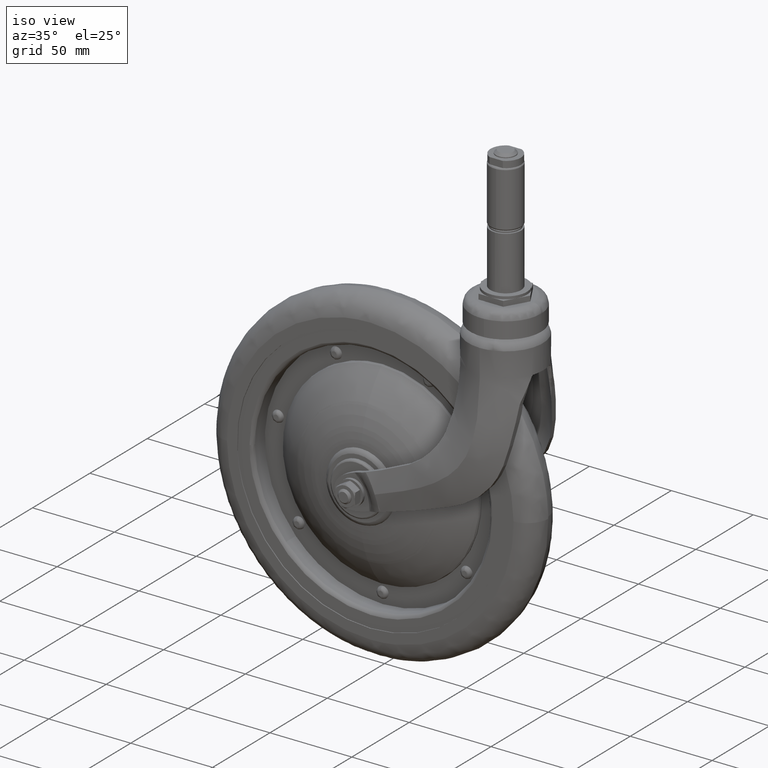
[diagram: clean part render]
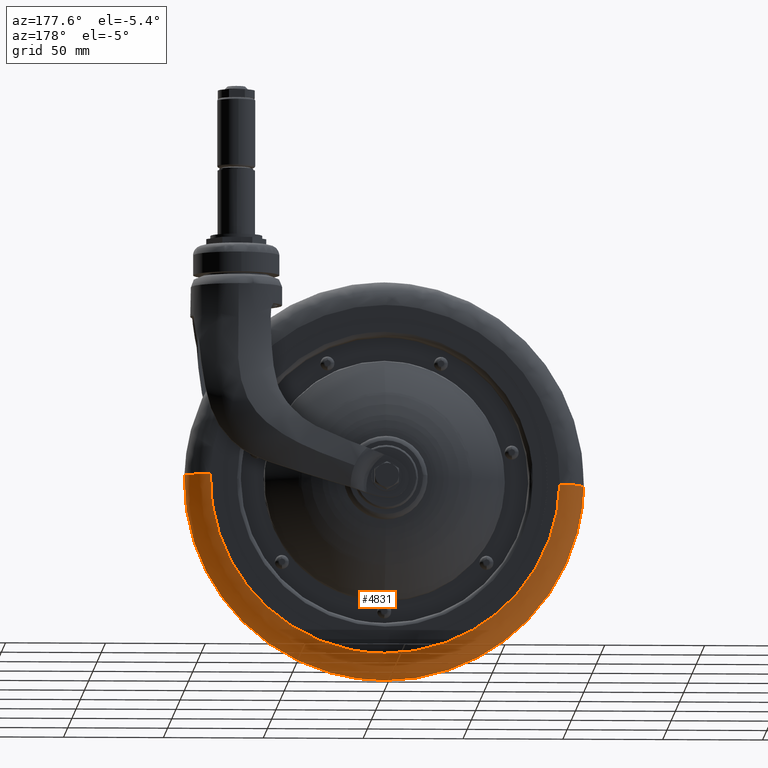
[diagram: tour spotlight — one face highlighted and labeled with its STEP entity id]
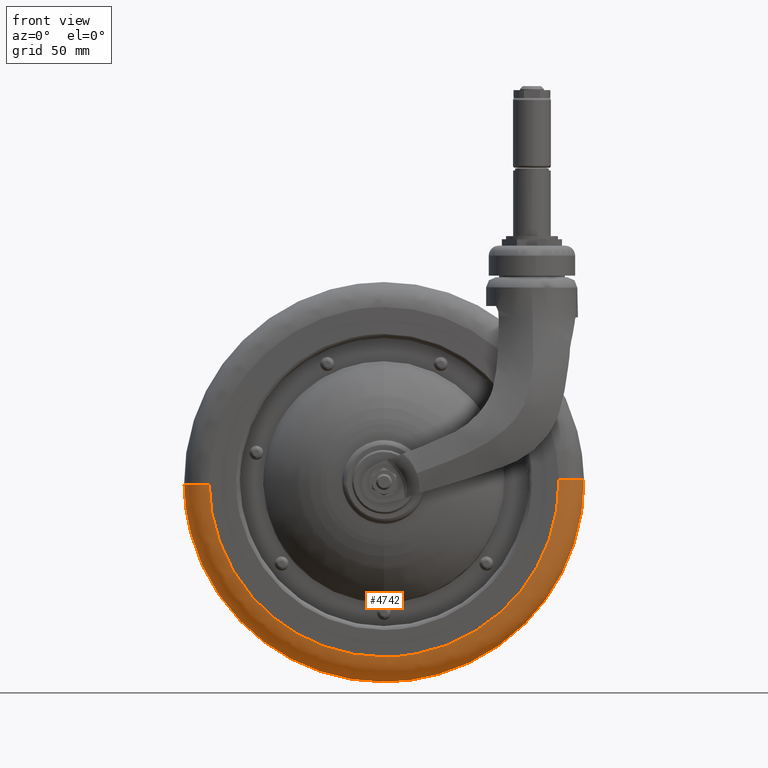
[diagram: tour spotlight — one face highlighted and labeled with its STEP entity id]
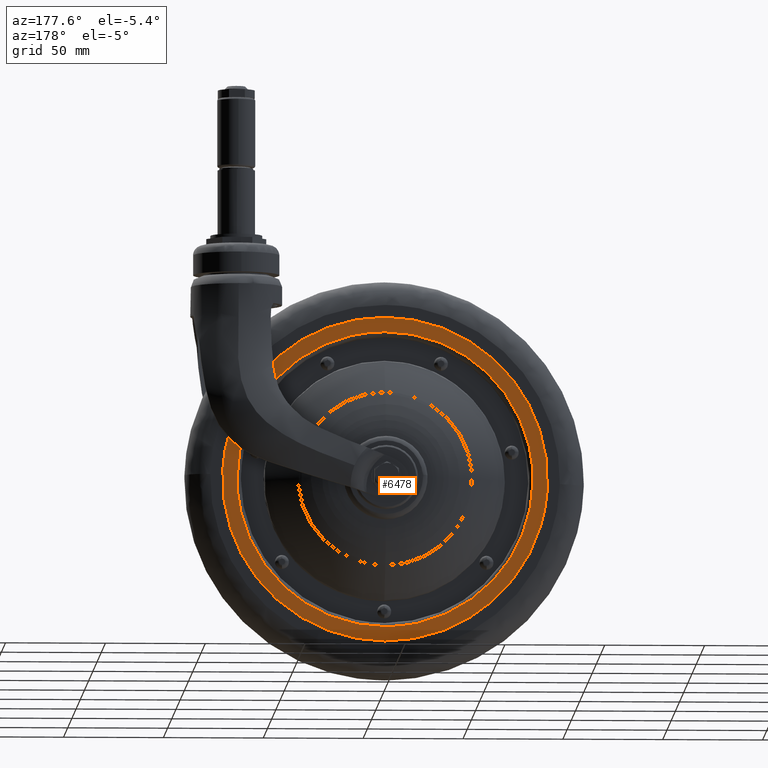
[diagram: tour spotlight — one face highlighted and labeled with its STEP entity id]
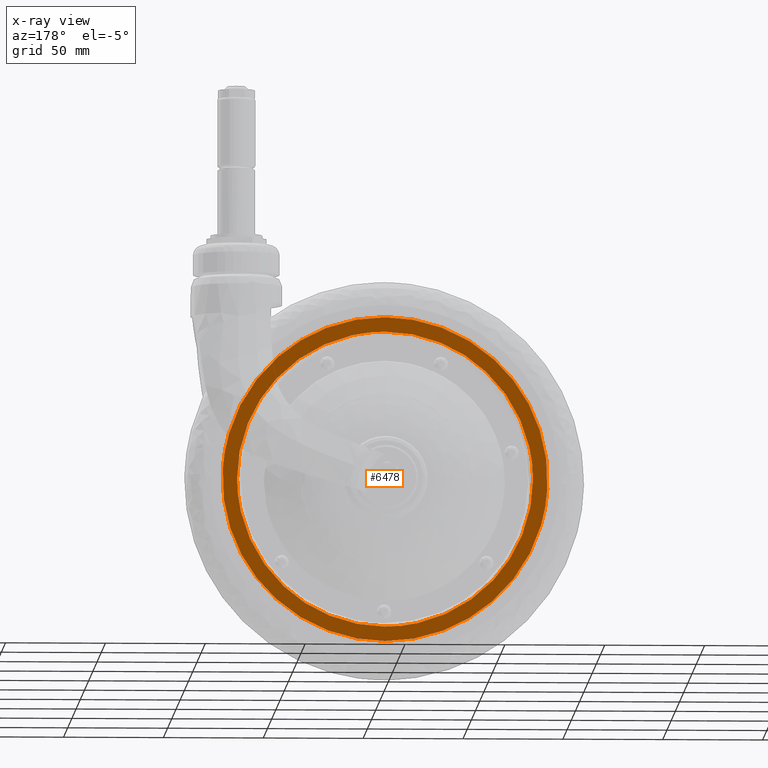
[diagram: x-ray of the same camera — body ghosted, this tour face saturated]
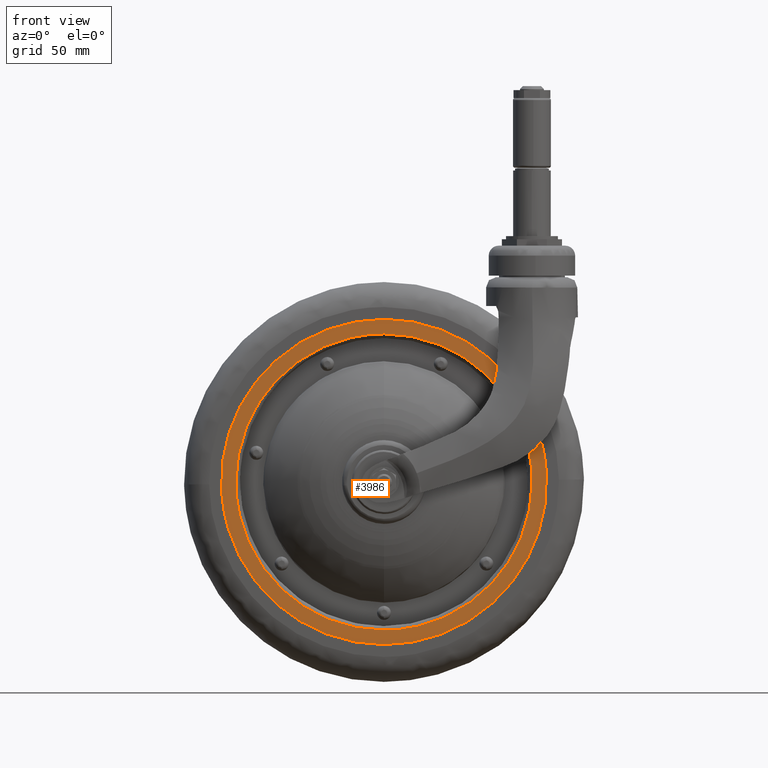
[diagram: tour spotlight — one face highlighted and labeled with its STEP entity id]
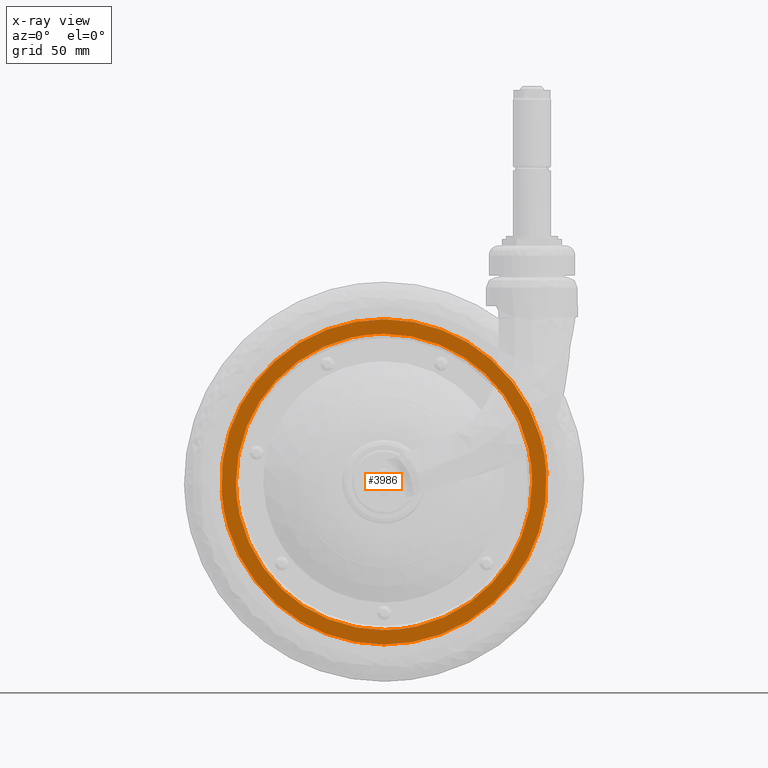
[diagram: x-ray of the same camera — body ghosted, this tour face saturated]
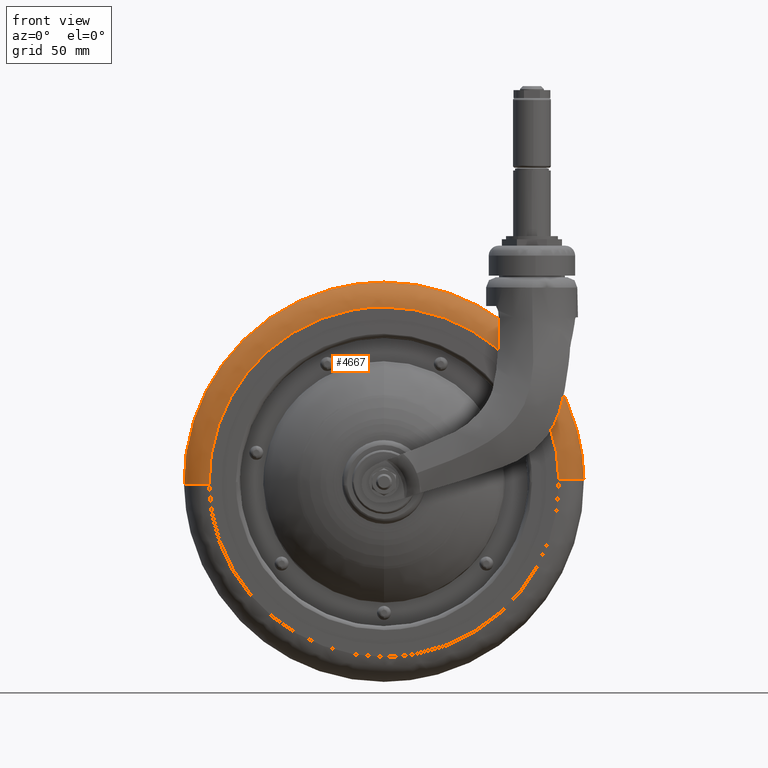
[diagram: tour spotlight — one face highlighted and labeled with its STEP entity id]
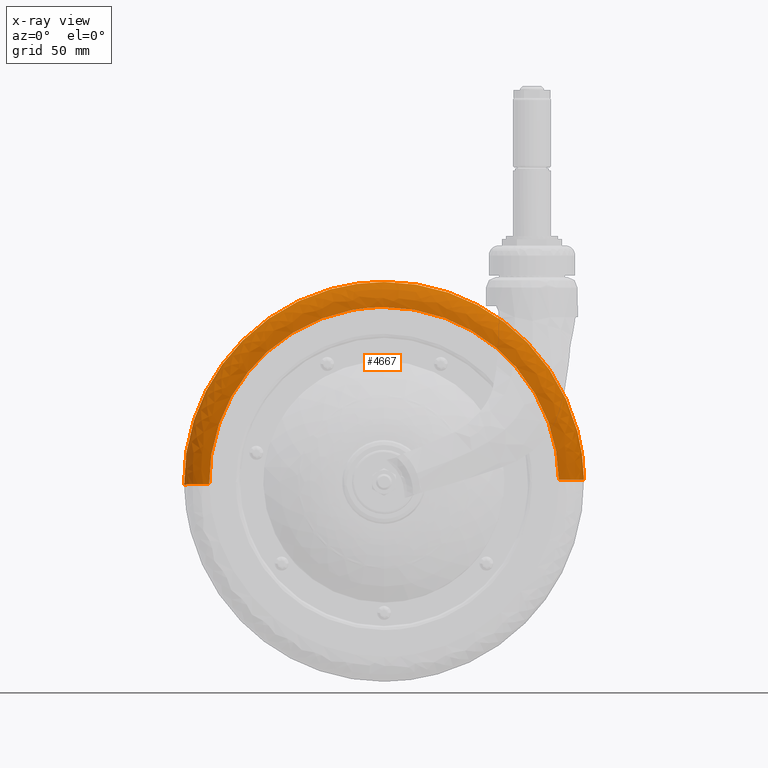
[diagram: x-ray of the same camera — body ghosted, this tour face saturated]
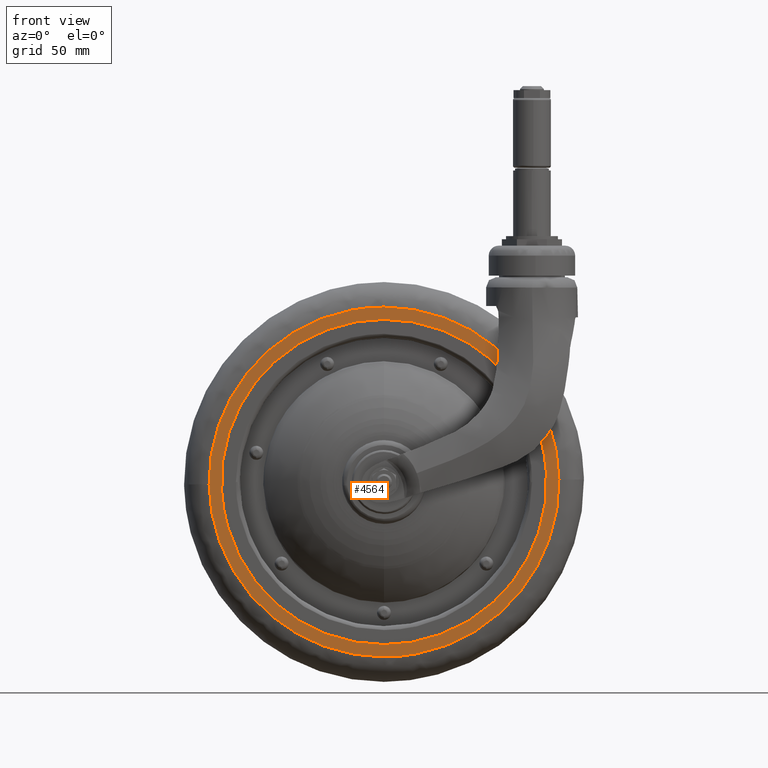
[diagram: tour spotlight — one face highlighted and labeled with its STEP entity id]
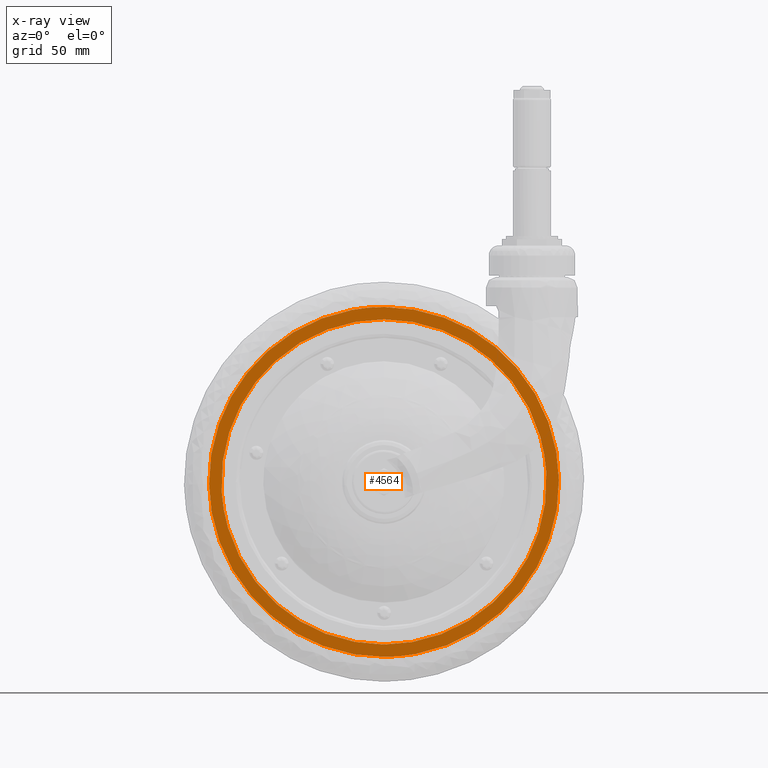
[diagram: x-ray of the same camera — body ghosted, this tour face saturated]
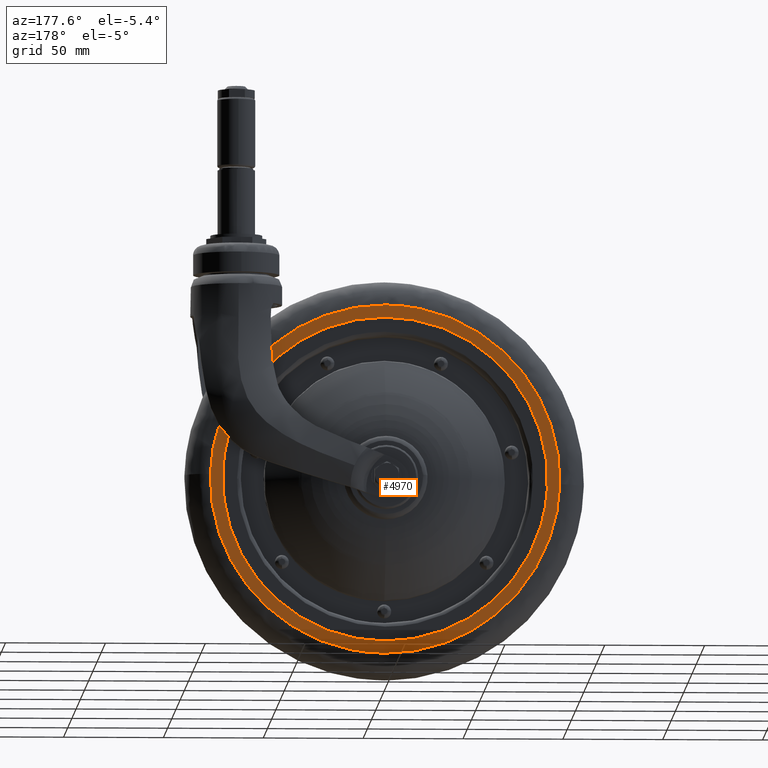
[diagram: tour spotlight — one face highlighted and labeled with its STEP entity id]
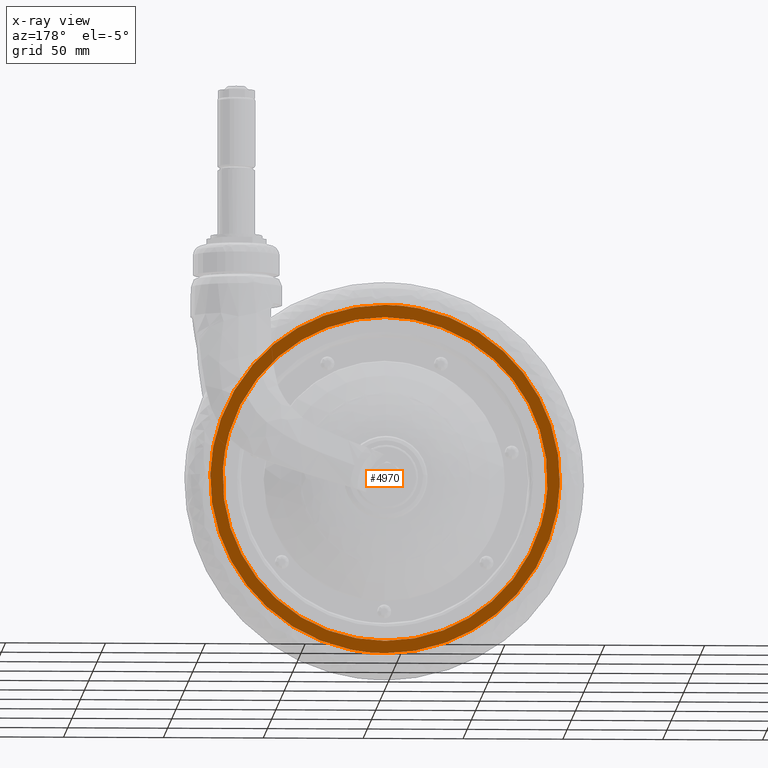
[diagram: x-ray of the same camera — body ghosted, this tour face saturated]
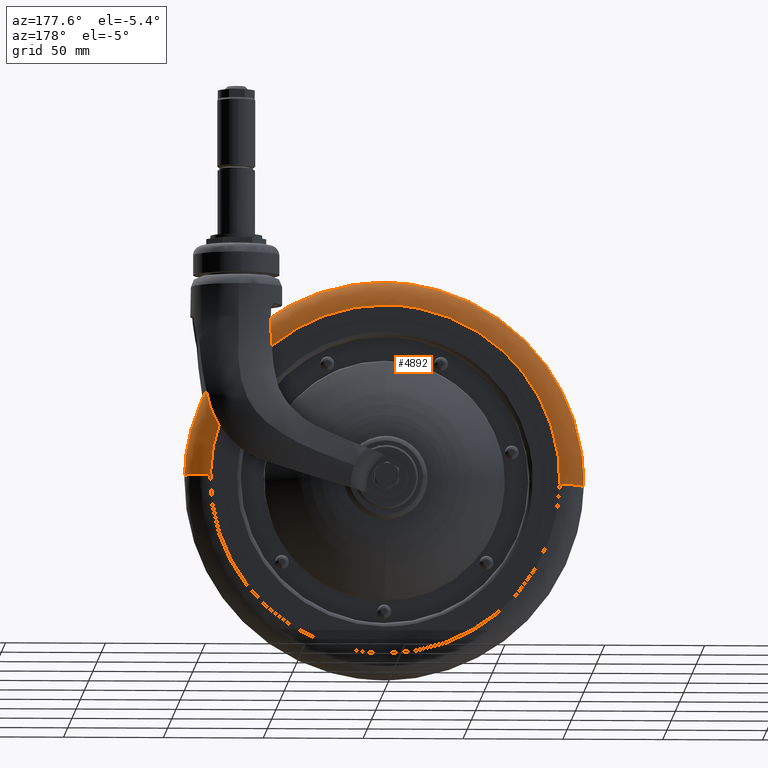
[diagram: tour spotlight — one face highlighted and labeled with its STEP entity id]
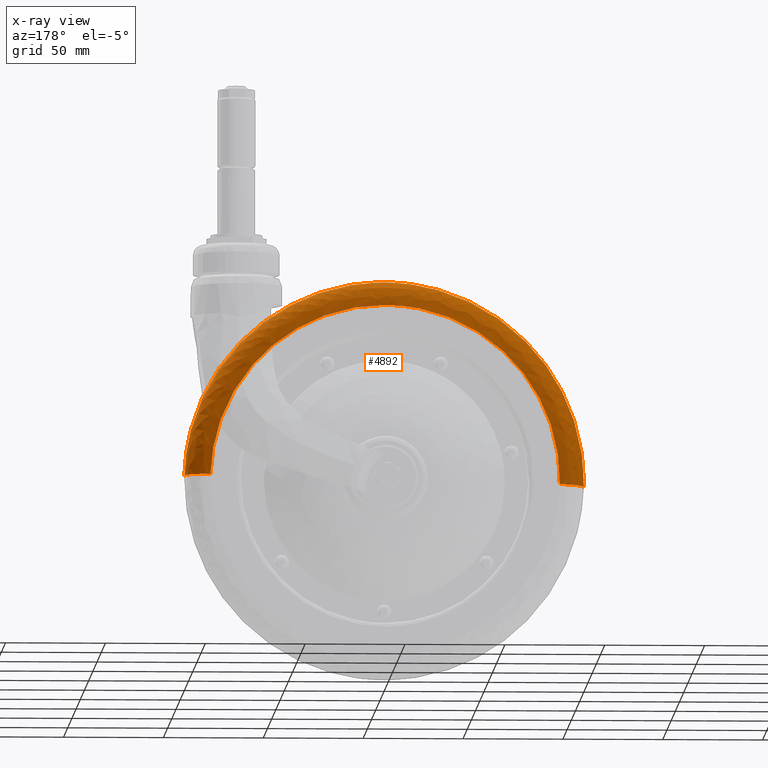
[diagram: x-ray of the same camera — body ghosted, this tour face saturated]
A machine part: a face-by-face anatomy tour. The part has 364 B-rep faces; the first image is the clean iso view, then the 8 largest visible faces are spotlighted one at a time (largest first), each with its STEP entity span.

Face 1 — auxiliary view, entity #4831. In plain terms, the highlighted face is a freeform B-spline surface patch.
Definition (entity closure, byte-faithful):
#4590=CARTESIAN_POINT('',(99.992104420381438,-9.870293E-011,1.256603988346599));
#4591=VERTEX_POINT('',#4590);
#4605=CARTESIAN_POINT('',(99.968418928329598,1.717467E-009,2.513009544348509));
#4606=VERTEX_POINT('',#4605);
#4607=CARTESIAN_POINT('',(99.968418928329598,1.717467E-009,2.513009544348509));
#4608=CARTESIAN_POINT('',(99.984208840762960,8.093799E-010,1.884881177494595));
#4609=CARTESIAN_POINT('',(99.992104420381423,-9.870293E-011,1.256603988346599));
#4617=(BOUNDED_CURVE()B_SPLINE_CURVE(2,(#4607,#4608,#4609),.UNSPECIFIED.,.F.,.U.)B_SPLINE_CURVE_WITH_KNOTS((3,3),(0.245579891769782,0.247784295921708),.UNSPECIFIED.)CURVE()GEOMETRIC_REPRESENTATION_ITEM()RATIONAL_B_SPLINE_CURVE((0.989826157681518,0.992317454108764,0.994854295643967))REPRESENTATION_ITEM(''));
#4618=EDGE_CURVE('',#4606,#4591,#4617,.T.);
#4693=CARTESIAN_POINT('',(-99.968418928329612,1.717467E-009,-2.513009544348494));
#4694=VERTEX_POINT('',#4693);
#4708=CARTESIAN_POINT('',(0.0,-3.061516E-015,-99.999999999999986));
#4709=VERTEX_POINT('',#4708);
#4710=CARTESIAN_POINT('',(0.0,-3.061516E-015,-99.999999999999986));
#4711=CARTESIAN_POINT('',(-97.517787618050548,8.590323E-010,-99.999999999999986));
#4712=CARTESIAN_POINT('',(-99.968418928329612,1.717467E-009,-2.513009544348494));
#4720=(BOUNDED_CURVE()B_SPLINE_CURVE(2,(#4710,#4711,#4712),.UNSPECIFIED.,.F.,.U.)B_SPLINE_CURVE_WITH_KNOTS((3,3),(0.500000000000000,0.745579891769782),.UNSPECIFIED.)CURVE()GEOMETRIC_REPRESENTATION_ITEM()RATIONAL_B_SPLINE_CURVE((1.0,0.712285260094757,0.989826157681518))REPRESENTATION_ITEM(''));
#4721=EDGE_CURVE('',#4709,#4694,#4720,.T.);
#4723=CARTESIAN_POINT('',(99.992104420381423,-9.870293E-011,1.256603988346599));
#4724=CARTESIAN_POINT('',(99.999999999999972,-9.839672E-011,0.628326799194651));
#4725=CARTESIAN_POINT('',(99.999999999999972,-9.808664E-011,7.723035E-015));
#4726=CARTESIAN_POINT('',(99.999999999999986,-4.873671E-011,-99.999999999999986));
#4727=CARTESIAN_POINT('',(0.0,-3.061516E-015,-99.999999999999986));
#4735=(BOUNDED_CURVE()B_SPLINE_CURVE(2,(#4723,#4724,#4725,#4726,#4727),.UNSPECIFIED.,.F.,.U.)B_SPLINE_CURVE_WITH_KNOTS((3,2,3),(0.247784295921708,0.250000000000000,0.500000000000000),.UNSPECIFIED.)CURVE()GEOMETRIC_REPRESENTATION_ITEM()RATIONAL_B_SPLINE_CURVE((0.994854295643967,0.997404141202284,1.0,0.707106781186547,1.0))REPRESENTATION_ITEM(''));
#4736=EDGE_CURVE('',#4591,#4709,#4735,.T.);
#4743=CARTESIAN_POINT('',(99.938007380850351,-0.871552306805747,2.512245057809973));
#4744=CARTESIAN_POINT('',(102.450252438660340,-0.871552306805747,-97.425762323040345));
#4745=CARTESIAN_POINT('',(2.512245057810001,-0.871552306805747,-99.938007380850351));
#4746=CARTESIAN_POINT('',(-97.425762323040345,-0.871552306805747,-102.450252438660340));
#4747=CARTESIAN_POINT('',(-99.938007380850351,-0.871552306805747,-2.512245057810008));
#4748=CARTESIAN_POINT('',(100.939852512873950,13.466696018658997,2.537429475106045));
#4749=CARTESIAN_POINT('',(103.477281987980020,13.466696018658995,-98.402423037767889));
#4750=CARTESIAN_POINT('',(2.537429475106073,13.466696018658997,-100.939852512873950));
#4751=CARTESIAN_POINT('',(-98.402423037767875,13.466696018658995,-103.477281987980020));
#4752=CARTESIAN_POINT('',(-100.939852512873950,13.466696018658997,-2.537429475106080));
#4753=CARTESIAN_POINT('',(86.605758157060095,12.469904381874365,2.177098519473290));
#4754=CARTESIAN_POINT('',(88.782856676533385,12.469904381874368,-84.428659637586748));
#4755=CARTESIAN_POINT('',(2.177098519473314,12.469904381874365,-86.605758157060095));
#4756=CARTESIAN_POINT('',(-84.428659637586748,12.469904381874368,-88.782856676533385));
#4757=CARTESIAN_POINT('',(-86.605758157060095,12.469904381874365,-2.177098519473319));
#4765=(BOUNDED_SURFACE()B_SPLINE_SURFACE(2,2,((#4743,#4748,#4753),(#4744,#4749,#4754),(#4745,#4750,#4755),(#4746,#4751,#4756),(#4747,#4752,#4757)),.UNSPECIFIED.,.F.,.F.,.U.)B_SPLINE_SURFACE_WITH_KNOTS((3,2,3),(3,3),(0.0,165.635021529622610,331.270043059245320),(0.0,22.779629064910981),.UNSPECIFIED.)GEOMETRIC_REPRESENTATION_ITEM()RATIONAL_B_SPLINE_SURFACE(((0.910892941386805,0.599412934105556,0.915966621324616),(0.644098575789570,0.423848950436964,0.647686209279166),(0.910892941386805,0.599412934105556,0.915966621324616),(0.644098575789570,0.423848950436964,0.647686209279166),(0.910892941386805,0.599412934105556,0.915966621324616)))REPRESENTATION_ITEM('')SURFACE());
#4766=ORIENTED_EDGE('',*,*,#4618,.T.);
#4767=ORIENTED_EDGE('',*,*,#4736,.T.);
#4768=ORIENTED_EDGE('',*,*,#4721,.T.);
#4769=CARTESIAN_POINT('',(-87.472366570442929,12.500000000000000,-2.198883352290745));
#4770=VERTEX_POINT('',#4769);
#4771=CARTESIAN_POINT('',(-99.968418928329612,1.717467E-009,-2.513009544348494));
#4772=CARTESIAN_POINT('',(-99.968418926602894,12.499999991823262,-2.513009544694577));
#4773=CARTESIAN_POINT('',(-87.472366570442929,12.500000000000002,-2.198883352290746));
#4781=(BOUNDED_CURVE()B_SPLINE_CURVE(2,(#4771,#4772,#4773),.UNSPECIFIED.,.F.,.U.)B_SPLINE_CURVE_WITH_KNOTS((3,3),(-1.723441281843306,-0.263586879604840),.UNSPECIFIED.)CURVE()GEOMETRIC_REPRESENTATION_ITEM()RATIONAL_B_SPLINE_CURVE((0.883897567088807,0.626638727382220,0.888510408819663))REPRESENTATION_ITEM(''));
#4782=EDGE_CURVE('',#4694,#4770,#4781,.T.);
#4783=ORIENTED_EDGE('',*,*,#4782,.T.);
#4784=CARTESIAN_POINT('',(0.0,12.500000000000000,-87.500000000000000));
#4785=VERTEX_POINT('',#4784);
#4786=CARTESIAN_POINT('',(0.0,12.500000000000000,-87.500000000000000));
#4787=CARTESIAN_POINT('',(-85.328064169119855,12.500000000000000,-87.500000000102759));
#4788=CARTESIAN_POINT('',(-87.472366570442929,12.499999999999998,-2.198883352290745));
#4796=(BOUNDED_CURVE()B_SPLINE_CURVE(2,(#4786,#4787,#4788),.UNSPECIFIED.,.F.,.U.)B_SPLINE_CURVE_WITH_KNOTS((3,3),(0.500000000000000,0.745579891768221),.UNSPECIFIED.)CURVE()GEOMETRIC_REPRESENTATION_ITEM()RATIONAL_B_SPLINE_CURVE((1.0,0.712285260096586,0.989826157677990))REPRESENTATION_ITEM(''));
#4797=EDGE_CURVE('',#4785,#4770,#4796,.T.);
#4798=ORIENTED_EDGE('',*,*,#4797,.F.);
#4799=CARTESIAN_POINT('',(87.472366570442944,12.500000000000000,2.198883352290750));
#4800=VERTEX_POINT('',#4799);
#4801=CARTESIAN_POINT('',(87.472366570442944,12.500000000000000,2.198883352290750));
#4802=CARTESIAN_POINT('',(87.500000008124061,12.500000000000004,1.099615311396745));
#4803=CARTESIAN_POINT('',(87.500000008072689,12.500000000000000,2.029338E-010));
#4804=CARTESIAN_POINT('',(87.500000003985619,12.500000000000000,-87.499999999899799));
#4805=CARTESIAN_POINT('',(0.0,12.500000000000000,-87.500000000000000));
#4813=(BOUNDED_CURVE()B_SPLINE_CURVE(2,(#4801,#4802,#4803,#4804,#4805),.UNSPECIFIED.,.F.,.U.)B_SPLINE_CURVE_WITH_KNOTS((3,2,3),(0.245579891768221,0.250000000000000,0.500000000000000),.UNSPECIFIED.)CURVE()GEOMETRIC_REPRESENTATION_ITEM()RATIONAL_B_SPLINE_CURVE((0.989826157677990,0.994821521089961,1.0,0.707106781186548,1.0))REPRESENTATION_ITEM(''));
#4814=EDGE_CURVE('',#4800,#4785,#4813,.T.);
#4815=ORIENTED_EDGE('',*,*,#4814,.F.);
#4816=CARTESIAN_POINT('',(99.968418928329598,1.717467E-009,2.513009544348510));
#4817=CARTESIAN_POINT('',(99.968418926602894,12.499999991823264,2.513009544694591));
#4818=CARTESIAN_POINT('',(87.472366570442944,12.500000000000002,2.198883352290750));
#4826=(BOUNDED_CURVE()B_SPLINE_CURVE(2,(#4816,#4817,#4818),.UNSPECIFIED.,.F.,.U.)B_SPLINE_CURVE_WITH_KNOTS((3,3),(-1.723441281843306,-0.263586879604840),.UNSPECIFIED.)CURVE()GEOMETRIC_REPRESENTATION_ITEM()RATIONAL_B_SPLINE_CURVE((0.883897567088807,0.626638727382220,0.888510408819663))REPRESENTATION_ITEM(''));
#4827=EDGE_CURVE('',#4606,#4800,#4826,.T.);
#4828=ORIENTED_EDGE('',*,*,#4827,.F.);
#4829=EDGE_LOOP('',(#4766,#4767,#4768,#4783,#4798,#4815,#4828));
#4830=FACE_OUTER_BOUND('',#4829,.T.);
#4831=ADVANCED_FACE('',(#4830),#4765,.T.);

Face 2 — front view, entity #4742. In plain terms, the highlighted face is a freeform B-spline surface patch.
Definition (entity closure, byte-faithful):
#4492=CARTESIAN_POINT('',(-87.493091373194090,-12.500000000000000,-1.099528490267587));
#4493=VERTEX_POINT('',#4492);
#4511=CARTESIAN_POINT('',(0.0,-12.500000000000000,-87.500000000000000));
#4512=VERTEX_POINT('',#4511);
#4513=CARTESIAN_POINT('',(0.0,-12.500000000000000,-87.500000000000000));
#4514=CARTESIAN_POINT('',(-86.407293869170857,-12.500000000000000,-87.500000000033722));
#4515=CARTESIAN_POINT('',(-87.493091373194090,-12.500000000000002,-1.099528490267587));
#4523=(BOUNDED_CURVE()B_SPLINE_CURVE(2,(#4513,#4514,#4515),.UNSPECIFIED.,.F.,.U.)B_SPLINE_CURVE_WITH_KNOTS((3,3),(0.500000000000000,0.747784295920910),.UNSPECIFIED.)CURVE()GEOMETRIC_REPRESENTATION_ITEM()RATIONAL_B_SPLINE_CURVE((1.0,0.709702639985198,0.994854295642130))REPRESENTATION_ITEM(''));
#4524=EDGE_CURVE('',#4512,#4493,#4523,.T.);
#4526=CARTESIAN_POINT('',(87.493091373194090,-12.500000000000000,1.099528490267598));
#4527=VERTEX_POINT('',#4526);
#4528=CARTESIAN_POINT('',(87.493091373194090,-12.500000000000002,1.099528490267598));
#4529=CARTESIAN_POINT('',(87.500000005348653,-12.500000000000002,0.549785949561004));
#4530=CARTESIAN_POINT('',(87.500000005331799,-12.500000000000000,6.700351E-011));
#4531=CARTESIAN_POINT('',(87.500000002649145,-12.500000000000000,-87.499999999966704));
#4532=CARTESIAN_POINT('',(0.0,-12.500000000000000,-87.500000000000000));
#4540=(BOUNDED_CURVE()B_SPLINE_CURVE(2,(#4528,#4529,#4530,#4531,#4532),.UNSPECIFIED.,.F.,.U.)B_SPLINE_CURVE_WITH_KNOTS((3,2,3),(0.247784295920911,0.250000000000000,0.500000000000000),.UNSPECIFIED.)CURVE()GEOMETRIC_REPRESENTATION_ITEM()RATIONAL_B_SPLINE_CURVE((0.994854295642130,0.997404141201349,1.0,0.707106781186548,1.0))REPRESENTATION_ITEM(''));
#4541=EDGE_CURVE('',#4527,#4512,#4540,.T.);
#4590=CARTESIAN_POINT('',(99.992104420381438,-9.870293E-011,1.256603988346599));
#4591=VERTEX_POINT('',#4590);
#4592=CARTESIAN_POINT('',(87.493091373194076,-12.500000000000004,1.099528490267598));
#4593=CARTESIAN_POINT('',(99.992104420280242,-12.499999994634253,1.256603988543091));
#4594=CARTESIAN_POINT('',(99.992104420381452,-9.870293E-011,1.256603988346599));
#4602=(BOUNDED_CURVE()B_SPLINE_CURVE(2,(#4592,#4593,#4594),.UNSPECIFIED.,.F.,.U.)B_SPLINE_CURVE_WITH_KNOTS((3,3),(-1.734750791212361,-0.265249208349804),.UNSPECIFIED.)CURVE()GEOMETRIC_REPRESENTATION_ITEM()RATIONAL_B_SPLINE_CURVE((0.889029723418368,0.628638946297795,0.889029723573534))REPRESENTATION_ITEM(''));
#4603=EDGE_CURVE('',#4527,#4591,#4602,.T.);
#4635=CARTESIAN_POINT('',(-99.992104420381452,-9.870293E-011,-1.256603988346607));
#4636=VERTEX_POINT('',#4635);
#4652=CARTESIAN_POINT('',(-87.493091373194105,-12.500000000000000,-1.099528490267587));
#4653=CARTESIAN_POINT('',(-99.992104420280256,-12.499999994634264,-1.256603988543095));
#4654=CARTESIAN_POINT('',(-99.992104420381452,-9.870293E-011,-1.256603988346607));
#4662=(BOUNDED_CURVE()B_SPLINE_CURVE(2,(#4652,#4653,#4654),.UNSPECIFIED.,.F.,.U.)B_SPLINE_CURVE_WITH_KNOTS((3,3),(-1.734750791212361,-0.265249208349804),.UNSPECIFIED.)CURVE()GEOMETRIC_REPRESENTATION_ITEM()RATIONAL_B_SPLINE_CURVE((0.889029723418368,0.628638946297794,0.889029723573534))REPRESENTATION_ITEM(''));
#4663=EDGE_CURVE('',#4493,#4636,#4662,.T.);
#4668=CARTESIAN_POINT('',(86.623946279589092,-12.469742078846373,1.088605915549441));
#4669=CARTESIAN_POINT('',(87.712552195138542,-12.469742078846366,-85.535340364039641));
#4670=CARTESIAN_POINT('',(1.088605915549446,-12.469742078846373,-86.623946279589092));
#4671=CARTESIAN_POINT('',(-85.535340364039641,-12.469742078846366,-87.712552195138542));
#4672=CARTESIAN_POINT('',(-86.623946279589092,-12.469742078846373,-1.088605915549451));
#4673=CARTESIAN_POINT('',(100.961242383563860,-13.469214113486954,1.268783176250486));
#4674=CARTESIAN_POINT('',(102.230025559814290,-13.469214113486954,-99.692459207313334));
#4675=CARTESIAN_POINT('',(1.268783176250492,-13.469214113486954,-100.961242383563860));
#4676=CARTESIAN_POINT('',(-99.692459207313334,-13.469214113486954,-102.230025559814320));
#4677=CARTESIAN_POINT('',(-100.961242383563860,-13.469214113486954,-1.268783176250498));
#4678=CARTESIAN_POINT('',(99.961848864081190,0.869214064691297,1.256223765787251));
#4679=CARTESIAN_POINT('',(101.218072629868490,0.869214064691297,-98.705625098293964));
#4680=CARTESIAN_POINT('',(1.256223765787257,0.869214064691297,-99.961848864081190));
#4681=CARTESIAN_POINT('',(-98.705625098293936,0.869214064691297,-101.218072629868490));
#4682=CARTESIAN_POINT('',(-99.961848864081190,0.869214064691297,-1.256223765787264));
#4690=(BOUNDED_SURFACE()B_SPLINE_SURFACE(2,2,((#4668,#4673,#4678),(#4669,#4674,#4679),(#4670,#4675,#4680),(#4671,#4676,#4681),(#4672,#4677,#4682)),.UNSPECIFIED.,.F.,.F.,.U.)B_SPLINE_SURFACE_WITH_KNOTS((3,2,3),(3,3),(0.0,165.635291943919610,331.270583887839110),(0.0,22.779673961239510),.UNSPECIFIED.)GEOMETRIC_REPRESENTATION_ITEM()RATIONAL_B_SPLINE_SURFACE(((0.916342095240933,0.601326568744382,0.916342106857795),(0.647951709431553,0.425202094466791,0.647951717645915),(0.916342095240933,0.601326568744382,0.916342106857795),(0.647951709431553,0.425202094466791,0.647951717645915),(0.916342095240933,0.601326568744382,0.916342106857795)))REPRESENTATION_ITEM('')SURFACE());
#4691=ORIENTED_EDGE('',*,*,#4524,.T.);
#4692=ORIENTED_EDGE('',*,*,#4663,.T.);
#4693=CARTESIAN_POINT('',(-99.968418928329612,1.717467E-009,-2.513009544348494));
#4694=VERTEX_POINT('',#4693);
#4695=CARTESIAN_POINT('',(-99.968418928329612,1.717467E-009,-2.513009544348494));
#4696=CARTESIAN_POINT('',(-99.984208840762960,8.093799E-010,-1.884881177494592));
#4697=CARTESIAN_POINT('',(-99.992104420381452,-9.870293E-011,-1.256603988346607));
#4705=(BOUNDED_CURVE()B_SPLINE_CURVE(2,(#4695,#4696,#4697),.UNSPECIFIED.,.F.,.U.)B_SPLINE_CURVE_WITH_KNOTS((3,3),(0.745579891769782,0.747784295921708),.UNSPECIFIED.)CURVE()GEOMETRIC_REPRESENTATION_ITEM()RATIONAL_B_SPLINE_CURVE((0.989826157681518,0.992317454108765,0.994854295643967))REPRESENTATION_ITEM(''));
#4706=EDGE_CURVE('',#4694,#4636,#4705,.T.);
#4707=ORIENTED_EDGE('',*,*,#4706,.F.);
#4708=CARTESIAN_POINT('',(0.0,-3.061516E-015,-99.999999999999986));
#4709=VERTEX_POINT('',#4708);
#4710=CARTESIAN_POINT('',(0.0,-3.061516E-015,-99.999999999999986));
#4711=CARTESIAN_POINT('',(-97.517787618050548,8.590323E-010,-99.999999999999986));
#4712=CARTESIAN_POINT('',(-99.968418928329612,1.717467E-009,-2.513009544348494));
#4720=(BOUNDED_CURVE()B_SPLINE_CURVE(2,(#4710,#4711,#4712),.UNSPECIFIED.,.F.,.U.)B_SPLINE_CURVE_WITH_KNOTS((3,3),(0.500000000000000,0.745579891769782),.UNSPECIFIED.)CURVE()GEOMETRIC_REPRESENTATION_ITEM()RATIONAL_B_SPLINE_CURVE((1.0,0.712285260094757,0.989826157681518))REPRESENTATION_ITEM(''));
#4721=EDGE_CURVE('',#4709,#4694,#4720,.T.);
#4722=ORIENTED_EDGE('',*,*,#4721,.F.);
#4723=CARTESIAN_POINT('',(99.992104420381423,-9.870293E-011,1.256603988346599));
#4724=CARTESIAN_POINT('',(99.999999999999972,-9.839672E-011,0.628326799194651));
#4725=CARTESIAN_POINT('',(99.999999999999972,-9.808664E-011,7.723035E-015));
#4726=CARTESIAN_POINT('',(99.999999999999986,-4.873671E-011,-99.999999999999986));
#4727=CARTESIAN_POINT('',(0.0,-3.061516E-015,-99.999999999999986));
#4735=(BOUNDED_CURVE()B_SPLINE_CURVE(2,(#4723,#4724,#4725,#4726,#4727),.UNSPECIFIED.,.F.,.U.)B_SPLINE_CURVE_WITH_KNOTS((3,2,3),(0.247784295921708,0.250000000000000,0.500000000000000),.UNSPECIFIED.)CURVE()GEOMETRIC_REPRESENTATION_ITEM()RATIONAL_B_SPLINE_CURVE((0.994854295643967,0.997404141202284,1.0,0.707106781186547,1.0))REPRESENTATION_ITEM(''));
#4736=EDGE_CURVE('',#4591,#4709,#4735,.T.);
#4737=ORIENTED_EDGE('',*,*,#4736,.F.);
#4738=ORIENTED_EDGE('',*,*,#4603,.F.);
#4739=ORIENTED_EDGE('',*,*,#4541,.T.);
#4740=EDGE_LOOP('',(#4691,#4692,#4707,#4722,#4737,#4738,#4739));
#4741=FACE_OUTER_BOUND('',#4740,.T.);
#4742=ADVANCED_FACE('',(#4741),#4690,.T.);

Face 3 — auxiliary view, entity #6478. An x-ray twin of the same camera follows (body ghosted, this face saturated) — the face is partly hidden behind the body. In plain terms, the highlighted face is a freeform B-spline surface patch.
Definition (entity closure, byte-faithful):
#4991=CARTESIAN_POINT('',(-81.198266318760204,12.0,-4.966291053455491));
#4992=VERTEX_POINT('',#4991);
#4998=CARTESIAN_POINT('',(0.0,12.0,-81.350000000000009));
#4999=VERTEX_POINT('',#4998);
#5000=CARTESIAN_POINT('',(0.0,12.0,-81.350000000000009));
#5001=CARTESIAN_POINT('',(-76.526445754491604,12.0,-81.350000000000009));
#5002=CARTESIAN_POINT('',(-81.198266318760602,11.999999999999998,-4.966291053455525));
#5010=(BOUNDED_CURVE()B_SPLINE_CURVE(2,(#5000,#5001,#5002),.UNSPECIFIED.,.F.,.U.)B_SPLINE_CURVE_WITH_KNOTS((3,3),(0.500000000000000,0.739332978472137),.UNSPECIFIED.)CURVE()GEOMETRIC_REPRESENTATION_ITEM()RATIONAL_B_SPLINE_CURVE((1.0,0.719603974268341,0.976072076457544))REPRESENTATION_ITEM(''));
#5011=EDGE_CURVE('',#4999,#4992,#5010,.T.);
#5013=CARTESIAN_POINT('',(81.198266318760204,12.0,4.966291053455475));
#5014=VERTEX_POINT('',#5013);
#5015=CARTESIAN_POINT('',(81.198266318760204,11.999999999999996,4.966291053455475));
#5016=CARTESIAN_POINT('',(81.350000000000009,11.999999999999998,2.485463464779976));
#5017=CARTESIAN_POINT('',(81.350000000000009,12.0,0.0));
#5018=CARTESIAN_POINT('',(81.350000000000009,12.0,-81.350000000000009));
#5019=CARTESIAN_POINT('',(0.0,12.0,-81.350000000000009));
#5027=(BOUNDED_CURVE()B_SPLINE_CURVE(2,(#5015,#5016,#5017,#5018,#5019),.UNSPECIFIED.,.F.,.U.)B_SPLINE_CURVE_WITH_KNOTS((3,2,3),(0.239332978472137,0.250000000000000,0.500000000000000),.UNSPECIFIED.)CURVE()GEOMETRIC_REPRESENTATION_ITEM()RATIONAL_B_SPLINE_CURVE((0.976072076457544,0.987502806918207,1.0,0.707106781186548,1.0))REPRESENTATION_ITEM(''));
#5028=EDGE_CURVE('',#5014,#4999,#5027,.T.);
#5058=CARTESIAN_POINT('',(0.0,12.0,81.350000000000009));
#5059=VERTEX_POINT('',#5058);
#5060=CARTESIAN_POINT('',(0.0,12.0,81.350000000000009));
#5061=CARTESIAN_POINT('',(76.526445754491647,12.000000000000002,81.350000000000023));
#5062=CARTESIAN_POINT('',(81.198266318760588,12.000000000000009,4.966291053455499));
#5070=(BOUNDED_CURVE()B_SPLINE_CURVE(2,(#5060,#5061,#5062),.UNSPECIFIED.,.F.,.U.)B_SPLINE_CURVE_WITH_KNOTS((3,3),(0.0,0.239332978472137),.UNSPECIFIED.)CURVE()GEOMETRIC_REPRESENTATION_ITEM()RATIONAL_B_SPLINE_CURVE((1.0,0.719603974268341,0.976072076457544))REPRESENTATION_ITEM(''));
#5071=EDGE_CURVE('',#5059,#5014,#5070,.T.);
#5073=CARTESIAN_POINT('',(-81.198266318760204,11.999999999999998,-4.966291053455491));
#5074=CARTESIAN_POINT('',(-81.350000000000023,12.0,-2.485463464779989));
#5075=CARTESIAN_POINT('',(-81.350000000000009,12.0,0.0));
#5076=CARTESIAN_POINT('',(-81.350000000000009,12.0,81.350000000000009));
#5077=CARTESIAN_POINT('',(0.0,12.0,81.350000000000009));
#5085=(BOUNDED_CURVE()B_SPLINE_CURVE(2,(#5073,#5074,#5075,#5076,#5077),.UNSPECIFIED.,.F.,.U.)B_SPLINE_CURVE_WITH_KNOTS((3,2,3),(0.739332978472137,0.750000000000000,1.0),.UNSPECIFIED.)CURVE()GEOMETRIC_REPRESENTATION_ITEM()RATIONAL_B_SPLINE_CURVE((0.976072076457544,0.987502806918207,1.0,0.707106781186548,1.0))REPRESENTATION_ITEM(''));
#5086=EDGE_CURVE('',#4992,#5059,#5085,.T.);
#6405=CARTESIAN_POINT('',(-89.474862757602835,12.0,-89.476864684655823));
#6406=CARTESIAN_POINT('',(-89.474862757602835,12.0,89.476869048609899));
#6407=CARTESIAN_POINT('',(89.474859848300127,12.0,-89.476864684655823));
#6408=CARTESIAN_POINT('',(89.474859848300127,12.0,89.476869048609899));
#6409=B_SPLINE_SURFACE_WITH_KNOTS('',1,1,((#6405,#6407),(#6406,#6408)),.UNSPECIFIED.,.F.,.F.,.U.,(2,2),(2,2),(0.0,178.953733733265690),(0.0,178.949722605902990),.UNSPECIFIED.);
#6410=ORIENTED_EDGE('',*,*,#5071,.T.);
#6411=ORIENTED_EDGE('',*,*,#5028,.T.);
#6412=ORIENTED_EDGE('',*,*,#5011,.T.);
#6413=ORIENTED_EDGE('',*,*,#5086,.T.);
#6414=EDGE_LOOP('',(#6410,#6411,#6412,#6413));
#6415=FACE_OUTER_BOUND('',#6414,.T.);
#6416=CARTESIAN_POINT('',(0.0,12.0,-74.100200000000001));
#6417=VERTEX_POINT('',#6416);
#6418=CARTESIAN_POINT('',(74.100199999924541,12.0,3.549790E-015));
#6419=VERTEX_POINT('',#6418);
#6420=CARTESIAN_POINT('',(0.0,12.0,-74.100200000000001));
#6421=CARTESIAN_POINT('',(74.100199999962271,12.0,-74.100199999999987));
#6422=CARTESIAN_POINT('',(74.100199999924541,12.0,3.549790E-015));
#6430=(BOUNDED_CURVE()B_SPLINE_CURVE(2,(#6420,#6421,#6422),.UNSPECIFIED.,.F.,.U.)B_SPLINE_CURVE_WITH_KNOTS((3,3),(0.500000000000000,0.750000000000000),.UNSPECIFIED.)CURVE()GEOMETRIC_REPRESENTATION_ITEM()RATIONAL_B_SPLINE_CURVE((1.0,0.707106781186547,1.0))REPRESENTATION_ITEM(''));
#6431=EDGE_CURVE('',#6417,#6419,#6430,.T.);
#6432=ORIENTED_EDGE('',*,*,#6431,.T.);
#6433=CARTESIAN_POINT('',(0.0,12.0,74.100200000000001));
#6434=VERTEX_POINT('',#6433);
#6435=CARTESIAN_POINT('',(74.100199999924541,12.0,3.549790E-015));
#6436=CARTESIAN_POINT('',(74.100199999962271,12.0,74.100199999999987));
#6437=CARTESIAN_POINT('',(0.0,12.0,74.100200000000001));
#6445=(BOUNDED_CURVE()B_SPLINE_CURVE(2,(#6435,#6436,#6437),.UNSPECIFIED.,.F.,.U.)B_SPLINE_CURVE_WITH_KNOTS((3,3),(0.750000000000000,1.0),.UNSPECIFIED.)CURVE()GEOMETRIC_REPRESENTATION_ITEM()RATIONAL_B_SPLINE_CURVE((1.0,0.707106781186547,1.0))REPRESENTATION_ITEM(''));
#6446=EDGE_CURVE('',#6419,#6434,#6445,.T.);
#6447=ORIENTED_EDGE('',*,*,#6446,.T.);
#6448=CARTESIAN_POINT('',(-74.100199999924541,12.0,-7.099579E-015));
#6449=VERTEX_POINT('',#6448);
#6450=CARTESIAN_POINT('',(0.0,12.0,74.100200000000001));
#6451=CARTESIAN_POINT('',(-74.100199999962271,12.0,74.100199999999987));
#6452=CARTESIAN_POINT('',(-74.100199999924541,12.0,-7.099579E-015));
#6460=(BOUNDED_CURVE()B_SPLINE_CURVE(2,(#6450,#6451,#6452),.UNSPECIFIED.,.F.,.U.)B_SPLINE_CURVE_WITH_KNOTS((3,3),(0.0,0.250000000000000),.UNSPECIFIED.)CURVE()GEOMETRIC_REPRESENTATION_ITEM()RATIONAL_B_SPLINE_CURVE((1.0,0.707106781186547,1.0))REPRESENTATION_ITEM(''));
#6461=EDGE_CURVE('',#6434,#6449,#6460,.T.);
#6462=ORIENTED_EDGE('',*,*,#6461,.T.);
#6463=CARTESIAN_POINT('',(-74.100199999924541,12.0,-7.099579E-015));
#6464=CARTESIAN_POINT('',(-74.100199999962271,12.0,-74.100199999999987));
#6465=CARTESIAN_POINT('',(0.0,12.0,-74.100200000000001));
#6473=(BOUNDED_CURVE()B_SPLINE_CURVE(2,(#6463,#6464,#6465),.UNSPECIFIED.,.F.,.U.)B_SPLINE_CURVE_WITH_KNOTS((3,3),(0.250000000000000,0.500000000000000),.UNSPECIFIED.)CURVE()GEOMETRIC_REPRESENTATION_ITEM()RATIONAL_B_SPLINE_CURVE((1.0,0.707106781186547,1.0))REPRESENTATION_ITEM(''));
#6474=EDGE_CURVE('',#6449,#6417,#6473,.T.);
#6475=ORIENTED_EDGE('',*,*,#6474,.T.);
#6476=EDGE_LOOP('',(#6432,#6447,#6462,#6475));
#6477=FACE_BOUND('',#6476,.T.);
#6478=ADVANCED_FACE('',(#6415,#6477),#6409,.T.);

Face 4 — front view, entity #3986. An x-ray twin of the same camera follows (body ghosted, this face saturated) — the face is partly hidden behind the body. In plain terms, the highlighted face is a freeform B-spline surface patch.
Definition (entity closure, byte-faithful):
#3788=CARTESIAN_POINT('',(74.100199925063606,-12.0,-7.099579E-015));
#3789=VERTEX_POINT('',#3788);
#3803=CARTESIAN_POINT('',(0.0,-12.0,74.100200000000001));
#3804=VERTEX_POINT('',#3803);
#3805=CARTESIAN_POINT('',(0.0,-12.0,74.100200000000001));
#3806=CARTESIAN_POINT('',(74.100199962531804,-11.999999999999998,74.100199999999987));
#3807=CARTESIAN_POINT('',(74.100199925063606,-12.0,-7.099579E-015));
#3815=(BOUNDED_CURVE()B_SPLINE_CURVE(2,(#3805,#3806,#3807),.UNSPECIFIED.,.F.,.U.)B_SPLINE_CURVE_WITH_KNOTS((3,3),(0.500000000000000,0.750000000000000),.UNSPECIFIED.)CURVE()GEOMETRIC_REPRESENTATION_ITEM()RATIONAL_B_SPLINE_CURVE((1.0,0.707106781186547,1.0))REPRESENTATION_ITEM(''));
#3816=EDGE_CURVE('',#3804,#3789,#3815,.T.);
#3818=CARTESIAN_POINT('',(-74.100199925063606,-12.0,3.549790E-015));
#3819=VERTEX_POINT('',#3818);
#3820=CARTESIAN_POINT('',(-74.100199925063606,-12.0,3.549790E-015));
#3821=CARTESIAN_POINT('',(-74.100199962531804,-11.999999999999998,74.100199999999987));
#3822=CARTESIAN_POINT('',(0.0,-12.0,74.100200000000001));
#3830=(BOUNDED_CURVE()B_SPLINE_CURVE(2,(#3820,#3821,#3822),.UNSPECIFIED.,.F.,.U.)B_SPLINE_CURVE_WITH_KNOTS((3,3),(0.250000000000000,0.500000000000000),.UNSPECIFIED.)CURVE()GEOMETRIC_REPRESENTATION_ITEM()RATIONAL_B_SPLINE_CURVE((1.0,0.707106781186547,1.0))REPRESENTATION_ITEM(''));
#3831=EDGE_CURVE('',#3819,#3804,#3830,.T.);
#3877=CARTESIAN_POINT('',(0.0,-12.0,-74.100200000000001));
#3878=VERTEX_POINT('',#3877);
#3879=CARTESIAN_POINT('',(0.0,-12.0,-74.100200000000001));
#3880=CARTESIAN_POINT('',(-74.100199962531804,-11.999999999999998,-74.100199999999987));
#3881=CARTESIAN_POINT('',(-74.100199925063606,-12.0,3.549790E-015));
#3889=(BOUNDED_CURVE()B_SPLINE_CURVE(2,(#3879,#3880,#3881),.UNSPECIFIED.,.F.,.U.)B_SPLINE_CURVE_WITH_KNOTS((3,3),(0.0,0.250000000000000),.UNSPECIFIED.)CURVE()GEOMETRIC_REPRESENTATION_ITEM()RATIONAL_B_SPLINE_CURVE((1.0,0.707106781186547,1.0))REPRESENTATION_ITEM(''));
#3890=EDGE_CURVE('',#3878,#3819,#3889,.T.);
#3892=CARTESIAN_POINT('',(74.100199925063606,-12.0,-7.099579E-015));
#3893=CARTESIAN_POINT('',(74.100199962531804,-11.999999999999998,-74.100199999999987));
#3894=CARTESIAN_POINT('',(0.0,-12.0,-74.100200000000001));
#3902=(BOUNDED_CURVE()B_SPLINE_CURVE(2,(#3892,#3893,#3894),.UNSPECIFIED.,.F.,.U.)B_SPLINE_CURVE_WITH_KNOTS((3,3),(0.750000000000000,1.0),.UNSPECIFIED.)CURVE()GEOMETRIC_REPRESENTATION_ITEM()RATIONAL_B_SPLINE_CURVE((1.0,0.707106781186547,1.0))REPRESENTATION_ITEM(''));
#3903=EDGE_CURVE('',#3789,#3878,#3902,.T.);
#3909=CARTESIAN_POINT('',(-89.474862757602835,-12.0,89.476864684655823));
#3910=CARTESIAN_POINT('',(-89.474862757602835,-12.0,-89.476869048609899));
#3911=CARTESIAN_POINT('',(89.474859848300127,-12.0,89.476864684655823));
#3912=CARTESIAN_POINT('',(89.474859848300127,-12.0,-89.476869048609899));
#3913=B_SPLINE_SURFACE_WITH_KNOTS('',1,1,((#3909,#3911),(#3910,#3912)),.UNSPECIFIED.,.F.,.F.,.U.,(2,2),(2,2),(0.0,178.953733733265690),(0.0,178.949722605902990),.UNSPECIFIED.);
#3914=CARTESIAN_POINT('',(-81.198266324603196,-11.999999999999011,-4.966290957923207));
#3915=VERTEX_POINT('',#3914);
#3916=CARTESIAN_POINT('',(0.0,-12.0,81.350000000000009));
#3917=VERTEX_POINT('',#3916);
#3918=CARTESIAN_POINT('',(-81.198266324603196,-11.999999999999011,-4.966290957923207));
#3919=CARTESIAN_POINT('',(-81.350000000000009,-12.000000000000004,-2.485463416879903));
#3920=CARTESIAN_POINT('',(-81.350000000000009,-12.0,0.0));
#3921=CARTESIAN_POINT('',(-81.350000000000009,-12.0,81.350000000000009));
#3922=CARTESIAN_POINT('',(0.0,-12.0,81.350000000000009));
#3930=(BOUNDED_CURVE()B_SPLINE_CURVE(2,(#3918,#3919,#3920,#3921,#3922),.UNSPECIFIED.,.F.,.U.)B_SPLINE_CURVE_WITH_KNOTS((3,2,3),(0.739332978675143,0.750000000000000,1.0),.UNSPECIFIED.)CURVE()GEOMETRIC_REPRESENTATION_ITEM()RATIONAL_B_SPLINE_CURVE((0.976072076892626,0.987502807156044,1.0,0.707106781186548,1.0))REPRESENTATION_ITEM(''));
#3931=EDGE_CURVE('',#3915,#3917,#3930,.T.);
#3932=ORIENTED_EDGE('',*,*,#3931,.F.);
#3933=CARTESIAN_POINT('',(0.0,-12.0,-81.350000000000009));
#3934=VERTEX_POINT('',#3933);
#3935=CARTESIAN_POINT('',(0.0,-12.0,-81.350000000000009));
#3936=CARTESIAN_POINT('',(-76.526445844695630,-12.0,-81.350000000000023));
#3937=CARTESIAN_POINT('',(-81.198266324603580,-12.000000000000004,-4.966290957923216));
#3945=(BOUNDED_CURVE()B_SPLINE_CURVE(2,(#3935,#3936,#3937),.UNSPECIFIED.,.F.,.U.)B_SPLINE_CURVE_WITH_KNOTS((3,3),(0.500000000000000,0.739332978675143),.UNSPECIFIED.)CURVE()GEOMETRIC_REPRESENTATION_ITEM()RATIONAL_B_SPLINE_CURVE((1.0,0.719603974030504,0.976072076892626))REPRESENTATION_ITEM(''));
#3946=EDGE_CURVE('',#3934,#3915,#3945,.T.);
#3947=ORIENTED_EDGE('',*,*,#3946,.F.);
#3948=CARTESIAN_POINT('',(81.198266324603196,-11.999999999999011,4.966290957923203));
#3949=VERTEX_POINT('',#3948);
#3950=CARTESIAN_POINT('',(81.198266324603196,-11.999999999999011,4.966290957923203));
#3951=CARTESIAN_POINT('',(81.350000000000009,-12.000000000000004,2.485463416879910));
#3952=CARTESIAN_POINT('',(81.350000000000009,-12.0,0.0));
#3953=CARTESIAN_POINT('',(81.350000000000009,-12.0,-81.350000000000009));
#3954=CARTESIAN_POINT('',(0.0,-12.0,-81.350000000000009));
#3962=(BOUNDED_CURVE()B_SPLINE_CURVE(2,(#3950,#3951,#3952,#3953,#3954),.UNSPECIFIED.,.F.,.U.)B_SPLINE_CURVE_WITH_KNOTS((3,2,3),(0.239332978675143,0.250000000000000,0.500000000000000),.UNSPECIFIED.)CURVE()GEOMETRIC_REPRESENTATION_ITEM()RATIONAL_B_SPLINE_CURVE((0.976072076892626,0.987502807156044,1.0,0.707106781186548,1.0))REPRESENTATION_ITEM(''));
#3963=EDGE_CURVE('',#3949,#3934,#3962,.T.);
#3964=ORIENTED_EDGE('',*,*,#3963,.F.);
#3965=CARTESIAN_POINT('',(0.0,-12.0,81.350000000000009));
#3966=CARTESIAN_POINT('',(76.526445844695616,-12.000000000000004,81.350000000000023));
#3967=CARTESIAN_POINT('',(81.198266324603580,-11.999999999999995,4.966290957923229));
#3975=(BOUNDED_CURVE()B_SPLINE_CURVE(2,(#3965,#3966,#3967),.UNSPECIFIED.,.F.,.U.)B_SPLINE_CURVE_WITH_KNOTS((3,3),(0.0,0.239332978675143),.UNSPECIFIED.)CURVE()GEOMETRIC_REPRESENTATION_ITEM()RATIONAL_B_SPLINE_CURVE((1.0,0.719603974030504,0.976072076892626))REPRESENTATION_ITEM(''));
#3976=EDGE_CURVE('',#3917,#3949,#3975,.T.);
#3977=ORIENTED_EDGE('',*,*,#3976,.F.);
#3978=EDGE_LOOP('',(#3932,#3947,#3964,#3977));
#3979=FACE_OUTER_BOUND('',#3978,.T.);
#3980=ORIENTED_EDGE('',*,*,#3890,.T.);
#3981=ORIENTED_EDGE('',*,*,#3831,.T.);
#3982=ORIENTED_EDGE('',*,*,#3816,.T.);
#3983=ORIENTED_EDGE('',*,*,#3903,.T.);
#3984=EDGE_LOOP('',(#3980,#3981,#3982,#3983));
#3985=FACE_BOUND('',#3984,.T.);
#3986=ADVANCED_FACE('',(#3979,#3985),#3913,.T.);

Face 5 — front view, entity #4667. An x-ray twin of the same camera follows (body ghosted, this face saturated) — the face is partly hidden behind the body. In plain terms, the highlighted face is a freeform B-spline surface patch.
Definition (entity closure, byte-faithful):
#4492=CARTESIAN_POINT('',(-87.493091373194090,-12.500000000000000,-1.099528490267587));
#4493=VERTEX_POINT('',#4492);
#4494=CARTESIAN_POINT('',(0.0,-12.500000000000000,87.500000000000000));
#4495=VERTEX_POINT('',#4494);
#4496=CARTESIAN_POINT('',(-87.493091373194090,-12.500000000000002,-1.099528490267587));
#4497=CARTESIAN_POINT('',(-87.500000005348653,-12.500000000000002,-0.549785949560994));
#4498=CARTESIAN_POINT('',(-87.500000005331799,-12.500000000000000,-6.699292E-011));
#4499=CARTESIAN_POINT('',(-87.500000002649145,-12.500000000000000,87.499999999966704));
#4500=CARTESIAN_POINT('',(0.0,-12.500000000000000,87.500000000000000));
#4508=(BOUNDED_CURVE()B_SPLINE_CURVE(2,(#4496,#4497,#4498,#4499,#4500),.UNSPECIFIED.,.F.,.U.)B_SPLINE_CURVE_WITH_KNOTS((3,2,3),(0.747784295920910,0.750000000000000,1.0),.UNSPECIFIED.)CURVE()GEOMETRIC_REPRESENTATION_ITEM()RATIONAL_B_SPLINE_CURVE((0.994854295642130,0.997404141201349,1.0,0.707106781186548,1.0))REPRESENTATION_ITEM(''));
#4509=EDGE_CURVE('',#4493,#4495,#4508,.T.);
#4526=CARTESIAN_POINT('',(87.493091373194090,-12.500000000000000,1.099528490267598));
#4527=VERTEX_POINT('',#4526);
#4543=CARTESIAN_POINT('',(0.0,-12.500000000000000,87.500000000000000));
#4544=CARTESIAN_POINT('',(86.407293869170857,-12.500000000000000,87.500000000033722));
#4545=CARTESIAN_POINT('',(87.493091373194090,-12.500000000000002,1.099528490267598));
#4553=(BOUNDED_CURVE()B_SPLINE_CURVE(2,(#4543,#4544,#4545),.UNSPECIFIED.,.F.,.U.)B_SPLINE_CURVE_WITH_KNOTS((3,3),(0.0,0.247784295920911),.UNSPECIFIED.)CURVE()GEOMETRIC_REPRESENTATION_ITEM()RATIONAL_B_SPLINE_CURVE((1.0,0.709702639985198,0.994854295642130))REPRESENTATION_ITEM(''));
#4554=EDGE_CURVE('',#4495,#4527,#4553,.T.);
#4565=CARTESIAN_POINT('',(-86.623946279589092,-12.469742078846373,-1.088605915549451));
#4566=CARTESIAN_POINT('',(-87.712552195138542,-12.469742078846366,85.535340364039612));
#4567=CARTESIAN_POINT('',(-1.088605915549457,-12.469742078846373,86.623946279589092));
#4568=CARTESIAN_POINT('',(85.535340364039612,-12.469742078846366,87.712552195138542));
#4569=CARTESIAN_POINT('',(86.623946279589092,-12.469742078846373,1.088605915549462));
#4570=CARTESIAN_POINT('',(-100.961242383563860,-13.469214113486954,-1.268783176250498));
#4571=CARTESIAN_POINT('',(-102.230025559814320,-13.469214113486954,99.692459207313334));
#4572=CARTESIAN_POINT('',(-1.268783176250504,-13.469214113486954,100.961242383563860));
#4573=CARTESIAN_POINT('',(99.692459207313334,-13.469214113486954,102.230025559814320));
#4574=CARTESIAN_POINT('',(100.961242383563860,-13.469214113486954,1.268783176250510));
#4575=CARTESIAN_POINT('',(-99.961848864081190,0.869214064691297,-1.256223765787264));
#4576=CARTESIAN_POINT('',(-101.218072629868490,0.869214064691297,98.705625098293936));
#4577=CARTESIAN_POINT('',(-1.256223765787269,0.869214064691297,99.961848864081190));
#4578=CARTESIAN_POINT('',(98.705625098293936,0.869214064691297,101.218072629868500));
#4579=CARTESIAN_POINT('',(99.961848864081190,0.869214064691297,1.256223765787276));
#4587=(BOUNDED_SURFACE()B_SPLINE_SURFACE(2,2,((#4565,#4570,#4575),(#4566,#4571,#4576),(#4567,#4572,#4577),(#4568,#4573,#4578),(#4569,#4574,#4579)),.UNSPECIFIED.,.F.,.F.,.U.)B_SPLINE_SURFACE_WITH_KNOTS((3,2,3),(3,3),(0.0,165.635291943919610,331.270583887839110),(0.0,22.779673961239510),.UNSPECIFIED.)GEOMETRIC_REPRESENTATION_ITEM()RATIONAL_B_SPLINE_SURFACE(((0.916342095240933,0.601326568744382,0.916342106857795),(0.647951709431553,0.425202094466791,0.647951717645915),(0.916342095240933,0.601326568744382,0.916342106857795),(0.647951709431553,0.425202094466791,0.647951717645915),(0.916342095240933,0.601326568744382,0.916342106857795)))REPRESENTATION_ITEM('')SURFACE());
#4588=ORIENTED_EDGE('',*,*,#4509,.T.);
#4589=ORIENTED_EDGE('',*,*,#4554,.T.);
#4590=CARTESIAN_POINT('',(99.992104420381438,-9.870293E-011,1.256603988346599));
#4591=VERTEX_POINT('',#4590);
#4592=CARTESIAN_POINT('',(87.493091373194076,-12.500000000000004,1.099528490267598));
#4593=CARTESIAN_POINT('',(99.992104420280242,-12.499999994634253,1.256603988543091));
#4594=CARTESIAN_POINT('',(99.992104420381452,-9.870293E-011,1.256603988346599));
#4602=(BOUNDED_CURVE()B_SPLINE_CURVE(2,(#4592,#4593,#4594),.UNSPECIFIED.,.F.,.U.)B_SPLINE_CURVE_WITH_KNOTS((3,3),(-1.734750791212361,-0.265249208349804),.UNSPECIFIED.)CURVE()GEOMETRIC_REPRESENTATION_ITEM()RATIONAL_B_SPLINE_CURVE((0.889029723418368,0.628638946297795,0.889029723573534))REPRESENTATION_ITEM(''));
#4603=EDGE_CURVE('',#4527,#4591,#4602,.T.);
#4604=ORIENTED_EDGE('',*,*,#4603,.T.);
#4605=CARTESIAN_POINT('',(99.968418928329598,1.717467E-009,2.513009544348509));
#4606=VERTEX_POINT('',#4605);
#4607=CARTESIAN_POINT('',(99.968418928329598,1.717467E-009,2.513009544348509));
#4608=CARTESIAN_POINT('',(99.984208840762960,8.093799E-010,1.884881177494595));
#4609=CARTESIAN_POINT('',(99.992104420381423,-9.870293E-011,1.256603988346599));
#4617=(BOUNDED_CURVE()B_SPLINE_CURVE(2,(#4607,#4608,#4609),.UNSPECIFIED.,.F.,.U.)B_SPLINE_CURVE_WITH_KNOTS((3,3),(0.245579891769782,0.247784295921708),.UNSPECIFIED.)CURVE()GEOMETRIC_REPRESENTATION_ITEM()RATIONAL_B_SPLINE_CURVE((0.989826157681518,0.992317454108764,0.994854295643967))REPRESENTATION_ITEM(''));
#4618=EDGE_CURVE('',#4606,#4591,#4617,.T.);
#4619=ORIENTED_EDGE('',*,*,#4618,.F.);
#4620=CARTESIAN_POINT('',(0.0,-3.061516E-015,99.999999999999986));
#4621=VERTEX_POINT('',#4620);
#4622=CARTESIAN_POINT('',(0.0,-3.061516E-015,99.999999999999986));
#4623=CARTESIAN_POINT('',(97.517787618050548,8.590323E-010,100.000000000000010));
#4624=CARTESIAN_POINT('',(99.968418928329598,1.717467E-009,2.513009544348509));
#4632=(BOUNDED_CURVE()B_SPLINE_CURVE(2,(#4622,#4623,#4624),.UNSPECIFIED.,.F.,.U.)B_SPLINE_CURVE_WITH_KNOTS((3,3),(0.0,0.245579891769782),.UNSPECIFIED.)CURVE()GEOMETRIC_REPRESENTATION_ITEM()RATIONAL_B_SPLINE_CURVE((1.0,0.712285260094757,0.989826157681518))REPRESENTATION_ITEM(''));
#4633=EDGE_CURVE('',#4621,#4606,#4632,.T.);
#4634=ORIENTED_EDGE('',*,*,#4633,.F.);
#4635=CARTESIAN_POINT('',(-99.992104420381452,-9.870293E-011,-1.256603988346607));
#4636=VERTEX_POINT('',#4635);
#4637=CARTESIAN_POINT('',(-99.992104420381452,-9.870293E-011,-1.256603988346607));
#4638=CARTESIAN_POINT('',(-99.999999999999986,-9.839672E-011,-0.628326799194659));
#4639=CARTESIAN_POINT('',(-99.999999999999986,-9.808664E-011,-1.588739E-014));
#4640=CARTESIAN_POINT('',(-99.999999999999986,-4.873671E-011,99.999999999999986));
#4641=CARTESIAN_POINT('',(0.0,-3.061516E-015,99.999999999999986));
#4649=(BOUNDED_CURVE()B_SPLINE_CURVE(2,(#4637,#4638,#4639,#4640,#4641),.UNSPECIFIED.,.F.,.U.)B_SPLINE_CURVE_WITH_KNOTS((3,2,3),(0.747784295921708,0.750000000000000,1.0),.UNSPECIFIED.)CURVE()GEOMETRIC_REPRESENTATION_ITEM()RATIONAL_B_SPLINE_CURVE((0.994854295643967,0.997404141202284,1.0,0.707106781186547,1.0))REPRESENTATION_ITEM(''));
#4650=EDGE_CURVE('',#4636,#4621,#4649,.T.);
#4651=ORIENTED_EDGE('',*,*,#4650,.F.);
#4652=CARTESIAN_POINT('',(-87.493091373194105,-12.500000000000000,-1.099528490267587));
#4653=CARTESIAN_POINT('',(-99.992104420280256,-12.499999994634264,-1.256603988543095));
#4654=CARTESIAN_POINT('',(-99.992104420381452,-9.870293E-011,-1.256603988346607));
#4662=(BOUNDED_CURVE()B_SPLINE_CURVE(2,(#4652,#4653,#4654),.UNSPECIFIED.,.F.,.U.)B_SPLINE_CURVE_WITH_KNOTS((3,3),(-1.734750791212361,-0.265249208349804),.UNSPECIFIED.)CURVE()GEOMETRIC_REPRESENTATION_ITEM()RATIONAL_B_SPLINE_CURVE((0.889029723418368,0.628638946297794,0.889029723573534))REPRESENTATION_ITEM(''));
#4663=EDGE_CURVE('',#4493,#4636,#4662,.T.);
#4664=ORIENTED_EDGE('',*,*,#4663,.F.);
#4665=EDGE_LOOP('',(#4588,#4589,#4604,#4619,#4634,#4651,#4664));
#4666=FACE_OUTER_BOUND('',#4665,.T.);
#4667=ADVANCED_FACE('',(#4666),#4587,.T.);

Face 6 — front view, entity #4564. An x-ray twin of the same camera follows (body ghosted, this face saturated) — the face is partly hidden behind the body. In plain terms, the highlighted face is a freeform B-spline surface patch.
Definition (entity closure, byte-faithful):
#4129=CARTESIAN_POINT('',(-81.198266318760204,-12.500000000000000,-4.966291053455468));
#4130=VERTEX_POINT('',#4129);
#4136=CARTESIAN_POINT('',(0.0,-12.500000000000000,-81.350000000000009));
#4137=VERTEX_POINT('',#4136);
#4138=CARTESIAN_POINT('',(0.0,-12.500000000000000,-81.350000000000009));
#4139=CARTESIAN_POINT('',(-76.526445754491647,-12.500000000000000,-81.350000000000009));
#4140=CARTESIAN_POINT('',(-81.198266318760574,-12.500000000000005,-4.966291053455473));
#4148=(BOUNDED_CURVE()B_SPLINE_CURVE(2,(#4138,#4139,#4140),.UNSPECIFIED.,.F.,.U.)B_SPLINE_CURVE_WITH_KNOTS((3,3),(0.500000000000000,0.739332978472137),.UNSPECIFIED.)CURVE()GEOMETRIC_REPRESENTATION_ITEM()RATIONAL_B_SPLINE_CURVE((1.0,0.719603974268341,0.976072076457544))REPRESENTATION_ITEM(''));
#4149=EDGE_CURVE('',#4137,#4130,#4148,.T.);
#4151=CARTESIAN_POINT('',(81.198266318760204,-12.500000000000000,4.966291053455475));
#4152=VERTEX_POINT('',#4151);
#4153=CARTESIAN_POINT('',(81.198266318760204,-12.499999999999996,4.966291053455475));
#4154=CARTESIAN_POINT('',(81.350000000000009,-12.500000000000005,2.485463464779976));
#4155=CARTESIAN_POINT('',(81.350000000000009,-12.500000000000000,0.0));
#4156=CARTESIAN_POINT('',(81.350000000000009,-12.500000000000000,-81.350000000000009));
#4157=CARTESIAN_POINT('',(0.0,-12.500000000000000,-81.350000000000009));
#4165=(BOUNDED_CURVE()B_SPLINE_CURVE(2,(#4153,#4154,#4155,#4156,#4157),.UNSPECIFIED.,.F.,.U.)B_SPLINE_CURVE_WITH_KNOTS((3,2,3),(0.239332978472137,0.250000000000000,0.500000000000000),.UNSPECIFIED.)CURVE()GEOMETRIC_REPRESENTATION_ITEM()RATIONAL_B_SPLINE_CURVE((0.976072076457544,0.987502806918207,1.0,0.707106781186548,1.0))REPRESENTATION_ITEM(''));
#4166=EDGE_CURVE('',#4152,#4137,#4165,.T.);
#4196=CARTESIAN_POINT('',(0.0,-12.500000000000000,81.350000000000009));
#4197=VERTEX_POINT('',#4196);
#4198=CARTESIAN_POINT('',(0.0,-12.500000000000000,81.350000000000009));
#4199=CARTESIAN_POINT('',(76.526445754491647,-12.500000000000000,81.350000000000023));
#4200=CARTESIAN_POINT('',(81.198266318760588,-12.500000000000007,4.966291053455499));
#4208=(BOUNDED_CURVE()B_SPLINE_CURVE(2,(#4198,#4199,#4200),.UNSPECIFIED.,.F.,.U.)B_SPLINE_CURVE_WITH_KNOTS((3,3),(0.0,0.239332978472137),.UNSPECIFIED.)CURVE()GEOMETRIC_REPRESENTATION_ITEM()RATIONAL_B_SPLINE_CURVE((1.0,0.719603974268341,0.976072076457544))REPRESENTATION_ITEM(''));
#4209=EDGE_CURVE('',#4197,#4152,#4208,.T.);
#4211=CARTESIAN_POINT('',(-81.198266318760204,-12.500000000000005,-4.966291053455468));
#4212=CARTESIAN_POINT('',(-81.350000000000009,-12.500000000000005,-2.485463464779963));
#4213=CARTESIAN_POINT('',(-81.350000000000009,-12.500000000000000,0.0));
#4214=CARTESIAN_POINT('',(-81.350000000000009,-12.500000000000000,81.350000000000009));
#4215=CARTESIAN_POINT('',(0.0,-12.500000000000000,81.350000000000009));
#4223=(BOUNDED_CURVE()B_SPLINE_CURVE(2,(#4211,#4212,#4213,#4214,#4215),.UNSPECIFIED.,.F.,.U.)B_SPLINE_CURVE_WITH_KNOTS((3,2,3),(0.739332978472137,0.750000000000000,1.0),.UNSPECIFIED.)CURVE()GEOMETRIC_REPRESENTATION_ITEM()RATIONAL_B_SPLINE_CURVE((0.976072076457544,0.987502806918207,1.0,0.707106781186548,1.0))REPRESENTATION_ITEM(''));
#4224=EDGE_CURVE('',#4130,#4197,#4223,.T.);
#4487=CARTESIAN_POINT('',(-96.233650862218994,-12.500000000000000,96.241249660816038));
#4488=CARTESIAN_POINT('',(-96.233650862218994,-12.500000000000000,-96.241254354681814));
#4489=CARTESIAN_POINT('',(96.233655555714165,-12.500000000000000,96.241249660816038));
#4490=CARTESIAN_POINT('',(96.233655555714165,-12.500000000000000,-96.241254354681814));
#4491=B_SPLINE_SURFACE_WITH_KNOTS('',1,1,((#4487,#4489),(#4488,#4490)),.UNSPECIFIED.,.F.,.F.,.U.,(2,2),(2,2),(0.0,192.482504015497910),(0.0,192.467306417933200),.UNSPECIFIED.);
#4492=CARTESIAN_POINT('',(-87.493091373194090,-12.500000000000000,-1.099528490267587));
#4493=VERTEX_POINT('',#4492);
#4494=CARTESIAN_POINT('',(0.0,-12.500000000000000,87.500000000000000));
#4495=VERTEX_POINT('',#4494);
#4496=CARTESIAN_POINT('',(-87.493091373194090,-12.500000000000002,-1.099528490267587));
#4497=CARTESIAN_POINT('',(-87.500000005348653,-12.500000000000002,-0.549785949560994));
#4498=CARTESIAN_POINT('',(-87.500000005331799,-12.500000000000000,-6.699292E-011));
#4499=CARTESIAN_POINT('',(-87.500000002649145,-12.500000000000000,87.499999999966704));
#4500=CARTESIAN_POINT('',(0.0,-12.500000000000000,87.500000000000000));
#4508=(BOUNDED_CURVE()B_SPLINE_CURVE(2,(#4496,#4497,#4498,#4499,#4500),.UNSPECIFIED.,.F.,.U.)B_SPLINE_CURVE_WITH_KNOTS((3,2,3),(0.747784295920910,0.750000000000000,1.0),.UNSPECIFIED.)CURVE()GEOMETRIC_REPRESENTATION_ITEM()RATIONAL_B_SPLINE_CURVE((0.994854295642130,0.997404141201349,1.0,0.707106781186548,1.0))REPRESENTATION_ITEM(''));
#4509=EDGE_CURVE('',#4493,#4495,#4508,.T.);
#4510=ORIENTED_EDGE('',*,*,#4509,.F.);
#4511=CARTESIAN_POINT('',(0.0,-12.500000000000000,-87.500000000000000));
#4512=VERTEX_POINT('',#4511);
#4513=CARTESIAN_POINT('',(0.0,-12.500000000000000,-87.500000000000000));
#4514=CARTESIAN_POINT('',(-86.407293869170857,-12.500000000000000,-87.500000000033722));
#4515=CARTESIAN_POINT('',(-87.493091373194090,-12.500000000000002,-1.099528490267587));
#4523=(BOUNDED_CURVE()B_SPLINE_CURVE(2,(#4513,#4514,#4515),.UNSPECIFIED.,.F.,.U.)B_SPLINE_CURVE_WITH_KNOTS((3,3),(0.500000000000000,0.747784295920910),.UNSPECIFIED.)CURVE()GEOMETRIC_REPRESENTATION_ITEM()RATIONAL_B_SPLINE_CURVE((1.0,0.709702639985198,0.994854295642130))REPRESENTATION_ITEM(''));
#4524=EDGE_CURVE('',#4512,#4493,#4523,.T.);
#4525=ORIENTED_EDGE('',*,*,#4524,.F.);
#4526=CARTESIAN_POINT('',(87.493091373194090,-12.500000000000000,1.099528490267598));
#4527=VERTEX_POINT('',#4526);
#4528=CARTESIAN_POINT('',(87.493091373194090,-12.500000000000002,1.099528490267598));
#4529=CARTESIAN_POINT('',(87.500000005348653,-12.500000000000002,0.549785949561004));
#4530=CARTESIAN_POINT('',(87.500000005331799,-12.500000000000000,6.700351E-011));
#4531=CARTESIAN_POINT('',(87.500000002649145,-12.500000000000000,-87.499999999966704));
#4532=CARTESIAN_POINT('',(0.0,-12.500000000000000,-87.500000000000000));
#4540=(BOUNDED_CURVE()B_SPLINE_CURVE(2,(#4528,#4529,#4530,#4531,#4532),.UNSPECIFIED.,.F.,.U.)B_SPLINE_CURVE_WITH_KNOTS((3,2,3),(0.247784295920911,0.250000000000000,0.500000000000000),.UNSPECIFIED.)CURVE()GEOMETRIC_REPRESENTATION_ITEM()RATIONAL_B_SPLINE_CURVE((0.994854295642130,0.997404141201349,1.0,0.707106781186548,1.0))REPRESENTATION_ITEM(''));
#4541=EDGE_CURVE('',#4527,#4512,#4540,.T.);
#4542=ORIENTED_EDGE('',*,*,#4541,.F.);
#4543=CARTESIAN_POINT('',(0.0,-12.500000000000000,87.500000000000000));
#4544=CARTESIAN_POINT('',(86.407293869170857,-12.500000000000000,87.500000000033722));
#4545=CARTESIAN_POINT('',(87.493091373194090,-12.500000000000002,1.099528490267598));
#4553=(BOUNDED_CURVE()B_SPLINE_CURVE(2,(#4543,#4544,#4545),.UNSPECIFIED.,.F.,.U.)B_SPLINE_CURVE_WITH_KNOTS((3,3),(0.0,0.247784295920911),.UNSPECIFIED.)CURVE()GEOMETRIC_REPRESENTATION_ITEM()RATIONAL_B_SPLINE_CURVE((1.0,0.709702639985198,0.994854295642130))REPRESENTATION_ITEM(''));
#4554=EDGE_CURVE('',#4495,#4527,#4553,.T.);
#4555=ORIENTED_EDGE('',*,*,#4554,.F.);
#4556=EDGE_LOOP('',(#4510,#4525,#4542,#4555));
#4557=FACE_OUTER_BOUND('',#4556,.T.);
#4558=ORIENTED_EDGE('',*,*,#4149,.T.);
#4559=ORIENTED_EDGE('',*,*,#4224,.T.);
#4560=ORIENTED_EDGE('',*,*,#4209,.T.);
#4561=ORIENTED_EDGE('',*,*,#4166,.T.);
#4562=EDGE_LOOP('',(#4558,#4559,#4560,#4561));
#4563=FACE_BOUND('',#4562,.T.);
#4564=ADVANCED_FACE('',(#4557,#4563),#4491,.T.);

Face 7 — auxiliary view, entity #4970. An x-ray twin of the same camera follows (body ghosted, this face saturated) — the face is partly hidden behind the body. In plain terms, the highlighted face is a freeform B-spline surface patch.
Definition (entity closure, byte-faithful):
#4769=CARTESIAN_POINT('',(-87.472366570442929,12.500000000000000,-2.198883352290745));
#4770=VERTEX_POINT('',#4769);
#4784=CARTESIAN_POINT('',(0.0,12.500000000000000,-87.500000000000000));
#4785=VERTEX_POINT('',#4784);
#4786=CARTESIAN_POINT('',(0.0,12.500000000000000,-87.500000000000000));
#4787=CARTESIAN_POINT('',(-85.328064169119855,12.500000000000000,-87.500000000102759));
#4788=CARTESIAN_POINT('',(-87.472366570442929,12.499999999999998,-2.198883352290745));
#4796=(BOUNDED_CURVE()B_SPLINE_CURVE(2,(#4786,#4787,#4788),.UNSPECIFIED.,.F.,.U.)B_SPLINE_CURVE_WITH_KNOTS((3,3),(0.500000000000000,0.745579891768221),.UNSPECIFIED.)CURVE()GEOMETRIC_REPRESENTATION_ITEM()RATIONAL_B_SPLINE_CURVE((1.0,0.712285260096586,0.989826157677990))REPRESENTATION_ITEM(''));
#4797=EDGE_CURVE('',#4785,#4770,#4796,.T.);
#4799=CARTESIAN_POINT('',(87.472366570442944,12.500000000000000,2.198883352290750));
#4800=VERTEX_POINT('',#4799);
#4801=CARTESIAN_POINT('',(87.472366570442944,12.500000000000000,2.198883352290750));
#4802=CARTESIAN_POINT('',(87.500000008124061,12.500000000000004,1.099615311396745));
#4803=CARTESIAN_POINT('',(87.500000008072689,12.500000000000000,2.029338E-010));
#4804=CARTESIAN_POINT('',(87.500000003985619,12.500000000000000,-87.499999999899799));
#4805=CARTESIAN_POINT('',(0.0,12.500000000000000,-87.500000000000000));
#4813=(BOUNDED_CURVE()B_SPLINE_CURVE(2,(#4801,#4802,#4803,#4804,#4805),.UNSPECIFIED.,.F.,.U.)B_SPLINE_CURVE_WITH_KNOTS((3,2,3),(0.245579891768221,0.250000000000000,0.500000000000000),.UNSPECIFIED.)CURVE()GEOMETRIC_REPRESENTATION_ITEM()RATIONAL_B_SPLINE_CURVE((0.989826157677990,0.994821521089961,1.0,0.707106781186548,1.0))REPRESENTATION_ITEM(''));
#4814=EDGE_CURVE('',#4800,#4785,#4813,.T.);
#4857=CARTESIAN_POINT('',(0.0,12.500000000000000,87.500000000000000));
#4858=VERTEX_POINT('',#4857);
#4859=CARTESIAN_POINT('',(0.0,12.500000000000000,87.500000000000000));
#4860=CARTESIAN_POINT('',(85.328064169119841,12.500000000000000,87.500000000102730));
#4861=CARTESIAN_POINT('',(87.472366570442944,12.500000000000000,2.198883352290750));
#4869=(BOUNDED_CURVE()B_SPLINE_CURVE(2,(#4859,#4860,#4861),.UNSPECIFIED.,.F.,.U.)B_SPLINE_CURVE_WITH_KNOTS((3,3),(0.0,0.245579891768221),.UNSPECIFIED.)CURVE()GEOMETRIC_REPRESENTATION_ITEM()RATIONAL_B_SPLINE_CURVE((1.0,0.712285260096586,0.989826157677990))REPRESENTATION_ITEM(''));
#4870=EDGE_CURVE('',#4858,#4800,#4869,.T.);
#4872=CARTESIAN_POINT('',(-87.472366570442929,12.499999999999998,-2.198883352290745));
#4873=CARTESIAN_POINT('',(-87.500000008124033,12.500000000000002,-1.099615311396754));
#4874=CARTESIAN_POINT('',(-87.500000008072675,12.500000000000000,-2.029566E-010));
#4875=CARTESIAN_POINT('',(-87.500000003985605,12.499999999999996,87.499999999899799));
#4876=CARTESIAN_POINT('',(0.0,12.500000000000000,87.500000000000000));
#4884=(BOUNDED_CURVE()B_SPLINE_CURVE(2,(#4872,#4873,#4874,#4875,#4876),.UNSPECIFIED.,.F.,.U.)B_SPLINE_CURVE_WITH_KNOTS((3,2,3),(0.745579891768221,0.750000000000000,1.0),.UNSPECIFIED.)CURVE()GEOMETRIC_REPRESENTATION_ITEM()RATIONAL_B_SPLINE_CURVE((0.989826157677990,0.994821521089961,1.0,0.707106781186548,1.0))REPRESENTATION_ITEM(''));
#4885=EDGE_CURVE('',#4770,#4858,#4884,.T.);
#4893=CARTESIAN_POINT('',(-96.210855651753349,12.500000000000000,-96.241249660816038));
#4894=CARTESIAN_POINT('',(-96.210855651753349,12.500000000000000,96.241254354681814));
#4895=CARTESIAN_POINT('',(96.210860344136762,12.500000000000000,-96.241249660816038));
#4896=CARTESIAN_POINT('',(96.210860344136762,12.500000000000000,96.241254354681814));
#4897=B_SPLINE_SURFACE_WITH_KNOTS('',1,1,((#4893,#4895),(#4894,#4896)),.UNSPECIFIED.,.F.,.F.,.U.,(2,2),(2,2),(0.0,192.482504015497910),(0.0,192.421715995890110),.UNSPECIFIED.);
#4898=ORIENTED_EDGE('',*,*,#4870,.T.);
#4899=ORIENTED_EDGE('',*,*,#4814,.T.);
#4900=ORIENTED_EDGE('',*,*,#4797,.T.);
#4901=ORIENTED_EDGE('',*,*,#4885,.T.);
#4902=EDGE_LOOP('',(#4898,#4899,#4900,#4901));
#4903=FACE_OUTER_BOUND('',#4902,.T.);
#4904=CARTESIAN_POINT('',(0.0,12.500000000000000,-81.350000000000009));
#4905=VERTEX_POINT('',#4904);
#4906=CARTESIAN_POINT('',(-81.198266324603196,12.500000000000989,-4.966290957923207));
#4907=VERTEX_POINT('',#4906);
#4908=CARTESIAN_POINT('',(0.0,12.500000000000000,-81.350000000000009));
#4909=CARTESIAN_POINT('',(-76.526445844695630,12.500000000000000,-81.350000000000023));
#4910=CARTESIAN_POINT('',(-81.198266324603580,12.500000000000000,-4.966290957923216));
#4918=(BOUNDED_CURVE()B_SPLINE_CURVE(2,(#4908,#4909,#4910),.UNSPECIFIED.,.F.,.U.)B_SPLINE_CURVE_WITH_KNOTS((3,3),(0.500000000000000,0.739332978675143),.UNSPECIFIED.)CURVE()GEOMETRIC_REPRESENTATION_ITEM()RATIONAL_B_SPLINE_CURVE((1.0,0.719603974030504,0.976072076892626))REPRESENTATION_ITEM(''));
#4919=EDGE_CURVE('',#4905,#4907,#4918,.T.);
#4920=ORIENTED_EDGE('',*,*,#4919,.F.);
#4921=CARTESIAN_POINT('',(81.198266324603196,12.500000000000989,4.966290957923203));
#4922=VERTEX_POINT('',#4921);
#4923=CARTESIAN_POINT('',(81.198266324603196,12.500000000000995,4.966290957923203));
#4924=CARTESIAN_POINT('',(81.350000000000009,12.500000000000002,2.485463416879910));
#4925=CARTESIAN_POINT('',(81.350000000000009,12.500000000000000,0.0));
#4926=CARTESIAN_POINT('',(81.350000000000009,12.500000000000000,-81.350000000000009));
#4927=CARTESIAN_POINT('',(0.0,12.500000000000000,-81.350000000000009));
#4935=(BOUNDED_CURVE()B_SPLINE_CURVE(2,(#4923,#4924,#4925,#4926,#4927),.UNSPECIFIED.,.F.,.U.)B_SPLINE_CURVE_WITH_KNOTS((3,2,3),(0.239332978675143,0.250000000000000,0.500000000000000),.UNSPECIFIED.)CURVE()GEOMETRIC_REPRESENTATION_ITEM()RATIONAL_B_SPLINE_CURVE((0.976072076892626,0.987502807156044,1.0,0.707106781186548,1.0))REPRESENTATION_ITEM(''));
#4936=EDGE_CURVE('',#4922,#4905,#4935,.T.);
#4937=ORIENTED_EDGE('',*,*,#4936,.F.);
#4938=CARTESIAN_POINT('',(0.0,12.500000000000000,81.350000000000009));
#4939=VERTEX_POINT('',#4938);
#4940=CARTESIAN_POINT('',(0.0,12.500000000000000,81.350000000000009));
#4941=CARTESIAN_POINT('',(76.526445844695616,12.500000000000000,81.350000000000023));
#4942=CARTESIAN_POINT('',(81.198266324603580,12.500000000000000,4.966290957923229));
#4950=(BOUNDED_CURVE()B_SPLINE_CURVE(2,(#4940,#4941,#4942),.UNSPECIFIED.,.F.,.U.)B_SPLINE_CURVE_WITH_KNOTS((3,3),(0.0,0.239332978675143),.UNSPECIFIED.)CURVE()GEOMETRIC_REPRESENTATION_ITEM()RATIONAL_B_SPLINE_CURVE((1.0,0.719603974030504,0.976072076892626))REPRESENTATION_ITEM(''));
#4951=EDGE_CURVE('',#4939,#4922,#4950,.T.);
#4952=ORIENTED_EDGE('',*,*,#4951,.F.);
#4953=CARTESIAN_POINT('',(-81.198266324603196,12.500000000000986,-4.966290957923207));
#4954=CARTESIAN_POINT('',(-81.350000000000009,12.500000000000002,-2.485463416879903));
#4955=CARTESIAN_POINT('',(-81.350000000000009,12.500000000000000,0.0));
#4956=CARTESIAN_POINT('',(-81.350000000000009,12.500000000000000,81.350000000000009));
#4957=CARTESIAN_POINT('',(0.0,12.500000000000000,81.350000000000009));
#4965=(BOUNDED_CURVE()B_SPLINE_CURVE(2,(#4953,#4954,#4955,#4956,#4957),.UNSPECIFIED.,.F.,.U.)B_SPLINE_CURVE_WITH_KNOTS((3,2,3),(0.739332978675143,0.750000000000000,1.0),.UNSPECIFIED.)CURVE()GEOMETRIC_REPRESENTATION_ITEM()RATIONAL_B_SPLINE_CURVE((0.976072076892626,0.987502807156044,1.0,0.707106781186548,1.0))REPRESENTATION_ITEM(''));
#4966=EDGE_CURVE('',#4907,#4939,#4965,.T.);
#4967=ORIENTED_EDGE('',*,*,#4966,.F.);
#4968=EDGE_LOOP('',(#4920,#4937,#4952,#4967));
#4969=FACE_BOUND('',#4968,.T.);
#4970=ADVANCED_FACE('',(#4903,#4969),#4897,.T.);

Face 8 — auxiliary view, entity #4892. An x-ray twin of the same camera follows (body ghosted, this face saturated) — the face is partly hidden behind the body. In plain terms, the highlighted face is a freeform B-spline surface patch.
Definition (entity closure, byte-faithful):
#4605=CARTESIAN_POINT('',(99.968418928329598,1.717467E-009,2.513009544348509));
#4606=VERTEX_POINT('',#4605);
#4620=CARTESIAN_POINT('',(0.0,-3.061516E-015,99.999999999999986));
#4621=VERTEX_POINT('',#4620);
#4622=CARTESIAN_POINT('',(0.0,-3.061516E-015,99.999999999999986));
#4623=CARTESIAN_POINT('',(97.517787618050548,8.590323E-010,100.000000000000010));
#4624=CARTESIAN_POINT('',(99.968418928329598,1.717467E-009,2.513009544348509));
#4632=(BOUNDED_CURVE()B_SPLINE_CURVE(2,(#4622,#4623,#4624),.UNSPECIFIED.,.F.,.U.)B_SPLINE_CURVE_WITH_KNOTS((3,3),(0.0,0.245579891769782),.UNSPECIFIED.)CURVE()GEOMETRIC_REPRESENTATION_ITEM()RATIONAL_B_SPLINE_CURVE((1.0,0.712285260094757,0.989826157681518))REPRESENTATION_ITEM(''));
#4633=EDGE_CURVE('',#4621,#4606,#4632,.T.);
#4635=CARTESIAN_POINT('',(-99.992104420381452,-9.870293E-011,-1.256603988346607));
#4636=VERTEX_POINT('',#4635);
#4637=CARTESIAN_POINT('',(-99.992104420381452,-9.870293E-011,-1.256603988346607));
#4638=CARTESIAN_POINT('',(-99.999999999999986,-9.839672E-011,-0.628326799194659));
#4639=CARTESIAN_POINT('',(-99.999999999999986,-9.808664E-011,-1.588739E-014));
#4640=CARTESIAN_POINT('',(-99.999999999999986,-4.873671E-011,99.999999999999986));
#4641=CARTESIAN_POINT('',(0.0,-3.061516E-015,99.999999999999986));
#4649=(BOUNDED_CURVE()B_SPLINE_CURVE(2,(#4637,#4638,#4639,#4640,#4641),.UNSPECIFIED.,.F.,.U.)B_SPLINE_CURVE_WITH_KNOTS((3,2,3),(0.747784295921708,0.750000000000000,1.0),.UNSPECIFIED.)CURVE()GEOMETRIC_REPRESENTATION_ITEM()RATIONAL_B_SPLINE_CURVE((0.994854295643967,0.997404141202284,1.0,0.707106781186547,1.0))REPRESENTATION_ITEM(''));
#4650=EDGE_CURVE('',#4636,#4621,#4649,.T.);
#4693=CARTESIAN_POINT('',(-99.968418928329612,1.717467E-009,-2.513009544348494));
#4694=VERTEX_POINT('',#4693);
#4695=CARTESIAN_POINT('',(-99.968418928329612,1.717467E-009,-2.513009544348494));
#4696=CARTESIAN_POINT('',(-99.984208840762960,8.093799E-010,-1.884881177494592));
#4697=CARTESIAN_POINT('',(-99.992104420381452,-9.870293E-011,-1.256603988346607));
#4705=(BOUNDED_CURVE()B_SPLINE_CURVE(2,(#4695,#4696,#4697),.UNSPECIFIED.,.F.,.U.)B_SPLINE_CURVE_WITH_KNOTS((3,3),(0.745579891769782,0.747784295921708),.UNSPECIFIED.)CURVE()GEOMETRIC_REPRESENTATION_ITEM()RATIONAL_B_SPLINE_CURVE((0.989826157681518,0.992317454108765,0.994854295643967))REPRESENTATION_ITEM(''));
#4706=EDGE_CURVE('',#4694,#4636,#4705,.T.);
#4769=CARTESIAN_POINT('',(-87.472366570442929,12.500000000000000,-2.198883352290745));
#4770=VERTEX_POINT('',#4769);
#4771=CARTESIAN_POINT('',(-99.968418928329612,1.717467E-009,-2.513009544348494));
#4772=CARTESIAN_POINT('',(-99.968418926602894,12.499999991823262,-2.513009544694577));
#4773=CARTESIAN_POINT('',(-87.472366570442929,12.500000000000002,-2.198883352290746));
#4781=(BOUNDED_CURVE()B_SPLINE_CURVE(2,(#4771,#4772,#4773),.UNSPECIFIED.,.F.,.U.)B_SPLINE_CURVE_WITH_KNOTS((3,3),(-1.723441281843306,-0.263586879604840),.UNSPECIFIED.)CURVE()GEOMETRIC_REPRESENTATION_ITEM()RATIONAL_B_SPLINE_CURVE((0.883897567088807,0.626638727382220,0.888510408819663))REPRESENTATION_ITEM(''));
#4782=EDGE_CURVE('',#4694,#4770,#4781,.T.);
#4799=CARTESIAN_POINT('',(87.472366570442944,12.500000000000000,2.198883352290750));
#4800=VERTEX_POINT('',#4799);
#4816=CARTESIAN_POINT('',(99.968418928329598,1.717467E-009,2.513009544348510));
#4817=CARTESIAN_POINT('',(99.968418926602894,12.499999991823264,2.513009544694591));
#4818=CARTESIAN_POINT('',(87.472366570442944,12.500000000000002,2.198883352290750));
#4826=(BOUNDED_CURVE()B_SPLINE_CURVE(2,(#4816,#4817,#4818),.UNSPECIFIED.,.F.,.U.)B_SPLINE_CURVE_WITH_KNOTS((3,3),(-1.723441281843306,-0.263586879604840),.UNSPECIFIED.)CURVE()GEOMETRIC_REPRESENTATION_ITEM()RATIONAL_B_SPLINE_CURVE((0.883897567088807,0.626638727382220,0.888510408819663))REPRESENTATION_ITEM(''));
#4827=EDGE_CURVE('',#4606,#4800,#4826,.T.);
#4832=CARTESIAN_POINT('',(-99.938007380850351,-0.871552306805747,-2.512245057809960));
#4833=CARTESIAN_POINT('',(-102.450252438660310,-0.871552306805747,97.425762323040388));
#4834=CARTESIAN_POINT('',(-2.512245057809967,-0.871552306805747,99.938007380850351));
#4835=CARTESIAN_POINT('',(97.425762323040374,-0.871552306805747,102.450252438660310));
#4836=CARTESIAN_POINT('',(99.938007380850351,-0.871552306805747,2.512245057809973));
#4837=CARTESIAN_POINT('',(-100.939852512873950,13.466696018658997,-2.537429475106033));
#4838=CARTESIAN_POINT('',(-103.477281987979990,13.466696018658995,98.402423037767903));
#4839=CARTESIAN_POINT('',(-2.537429475106038,13.466696018658997,100.939852512873950));
#4840=CARTESIAN_POINT('',(98.402423037767903,13.466696018658995,103.477281987979990));
#4841=CARTESIAN_POINT('',(100.939852512873950,13.466696018658997,2.537429475106045));
#4842=CARTESIAN_POINT('',(-86.605758157060095,12.469904381874365,-2.177098519473278));
#4843=CARTESIAN_POINT('',(-88.782856676533356,12.469904381874368,84.428659637586804));
#4844=CARTESIAN_POINT('',(-2.177098519473284,12.469904381874365,86.605758157060095));
#4845=CARTESIAN_POINT('',(84.428659637586790,12.469904381874368,88.782856676533356));
#4846=CARTESIAN_POINT('',(86.605758157060095,12.469904381874365,2.177098519473290));
#4854=(BOUNDED_SURFACE()B_SPLINE_SURFACE(2,2,((#4832,#4837,#4842),(#4833,#4838,#4843),(#4834,#4839,#4844),(#4835,#4840,#4845),(#4836,#4841,#4846)),.UNSPECIFIED.,.F.,.F.,.U.)B_SPLINE_SURFACE_WITH_KNOTS((3,2,3),(3,3),(0.0,165.635021529622610,331.270043059245320),(0.0,22.779629064910999),.UNSPECIFIED.)GEOMETRIC_REPRESENTATION_ITEM()RATIONAL_B_SPLINE_SURFACE(((0.910892941386805,0.599412934105556,0.915966621324616),(0.644098575789570,0.423848950436964,0.647686209279166),(0.910892941386805,0.599412934105556,0.915966621324616),(0.644098575789570,0.423848950436964,0.647686209279166),(0.910892941386805,0.599412934105556,0.915966621324616)))REPRESENTATION_ITEM('')SURFACE());
#4855=ORIENTED_EDGE('',*,*,#4633,.T.);
#4856=ORIENTED_EDGE('',*,*,#4827,.T.);
#4857=CARTESIAN_POINT('',(0.0,12.500000000000000,87.500000000000000));
#4858=VERTEX_POINT('',#4857);
#4859=CARTESIAN_POINT('',(0.0,12.500000000000000,87.500000000000000));
#4860=CARTESIAN_POINT('',(85.328064169119841,12.500000000000000,87.500000000102730));
#4861=CARTESIAN_POINT('',(87.472366570442944,12.500000000000000,2.198883352290750));
#4869=(BOUNDED_CURVE()B_SPLINE_CURVE(2,(#4859,#4860,#4861),.UNSPECIFIED.,.F.,.U.)B_SPLINE_CURVE_WITH_KNOTS((3,3),(0.0,0.245579891768221),.UNSPECIFIED.)CURVE()GEOMETRIC_REPRESENTATION_ITEM()RATIONAL_B_SPLINE_CURVE((1.0,0.712285260096586,0.989826157677990))REPRESENTATION_ITEM(''));
#4870=EDGE_CURVE('',#4858,#4800,#4869,.T.);
#4871=ORIENTED_EDGE('',*,*,#4870,.F.);
#4872=CARTESIAN_POINT('',(-87.472366570442929,12.499999999999998,-2.198883352290745));
#4873=CARTESIAN_POINT('',(-87.500000008124033,12.500000000000002,-1.099615311396754));
#4874=CARTESIAN_POINT('',(-87.500000008072675,12.500000000000000,-2.029566E-010));
#4875=CARTESIAN_POINT('',(-87.500000003985605,12.499999999999996,87.499999999899799));
#4876=CARTESIAN_POINT('',(0.0,12.500000000000000,87.500000000000000));
#4884=(BOUNDED_CURVE()B_SPLINE_CURVE(2,(#4872,#4873,#4874,#4875,#4876),.UNSPECIFIED.,.F.,.U.)B_SPLINE_CURVE_WITH_KNOTS((3,2,3),(0.745579891768221,0.750000000000000,1.0),.UNSPECIFIED.)CURVE()GEOMETRIC_REPRESENTATION_ITEM()RATIONAL_B_SPLINE_CURVE((0.989826157677990,0.994821521089961,1.0,0.707106781186548,1.0))REPRESENTATION_ITEM(''));
#4885=EDGE_CURVE('',#4770,#4858,#4884,.T.);
#4886=ORIENTED_EDGE('',*,*,#4885,.F.);
#4887=ORIENTED_EDGE('',*,*,#4782,.F.);
#4888=ORIENTED_EDGE('',*,*,#4706,.T.);
#4889=ORIENTED_EDGE('',*,*,#4650,.T.);
#4890=EDGE_LOOP('',(#4855,#4856,#4871,#4886,#4887,#4888,#4889));
#4891=FACE_OUTER_BOUND('',#4890,.T.);
#4892=ADVANCED_FACE('',(#4891),#4854,.T.);